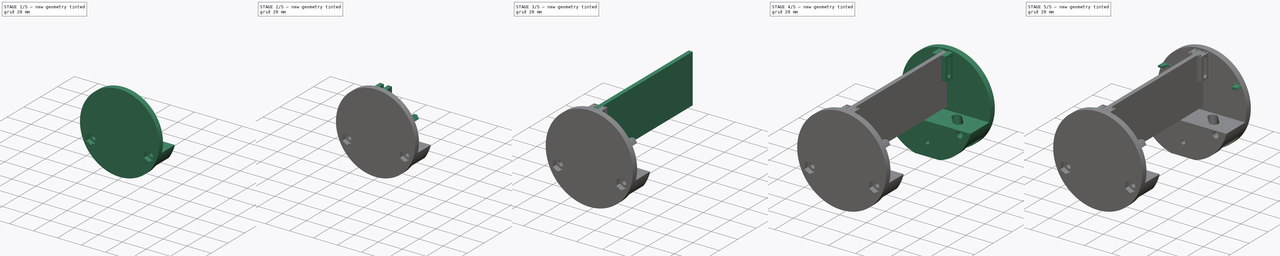
[diagram: build sequence overview — one tinted view per stage of 5, left to right]
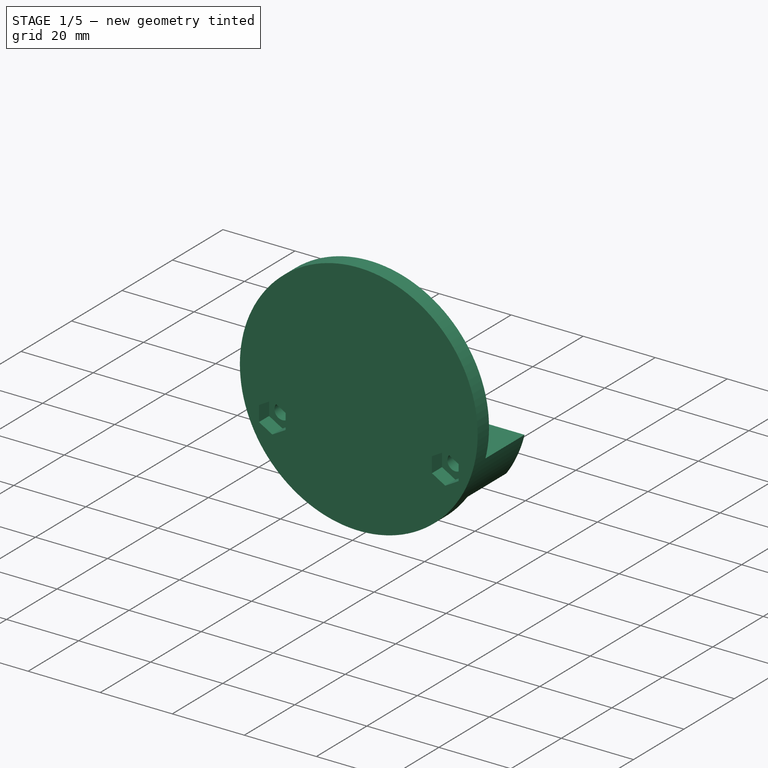
[diagram: stage 1 of 5 — iso view after this stage's code; geometry added in this stage tinted green]
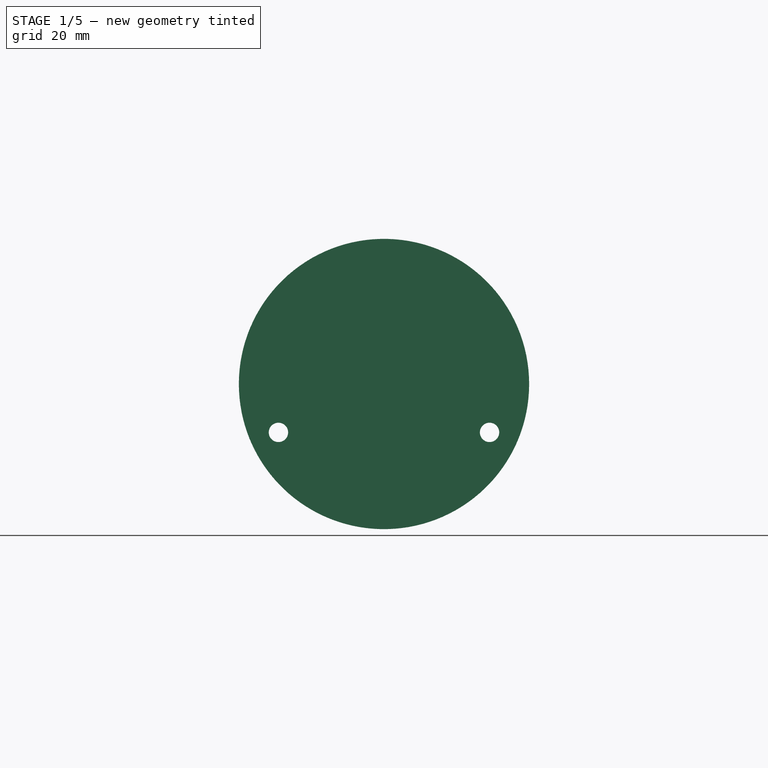
[diagram: stage 1 of 5 — front view after this stage's code; geometry added in this stage tinted green]
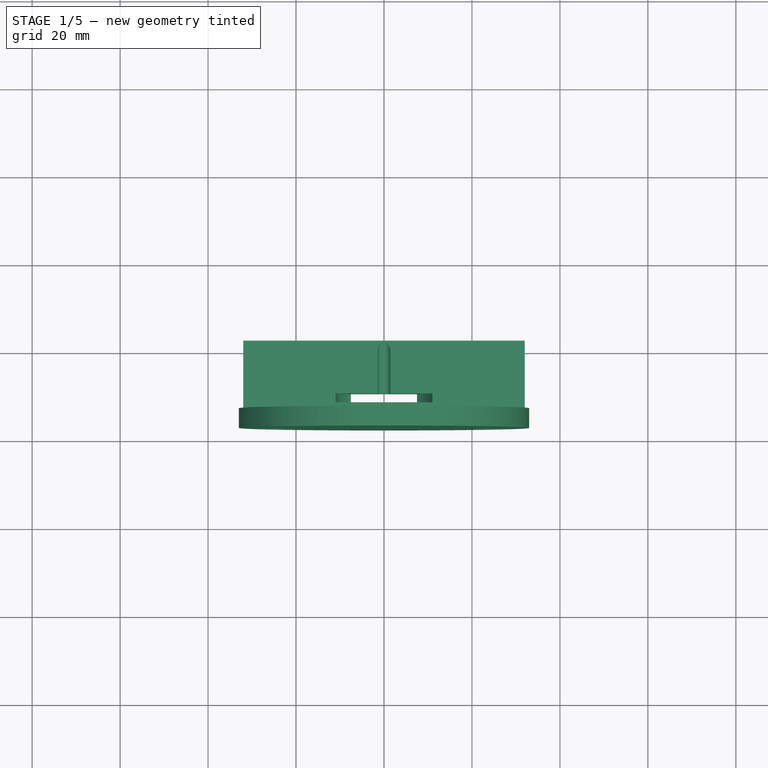
[diagram: stage 1 of 5 — top view after this stage's code; geometry added in this stage tinted green]
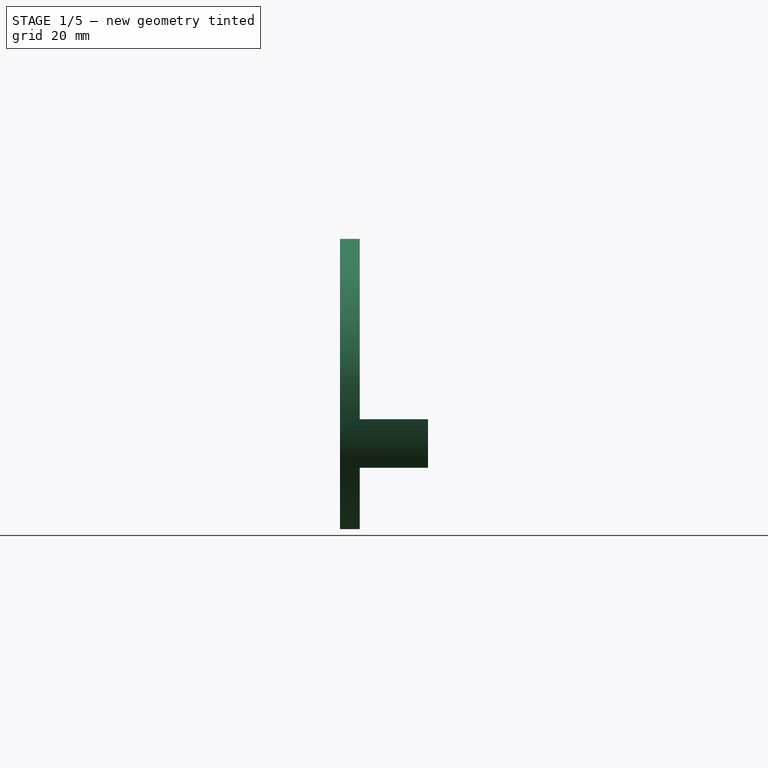
[diagram: stage 1 of 5 — right view after this stage's code; geometry added in this stage tinted green]
FCSTD DOCUMENT  (FreeCAD 0.19R24276 (Git))
Label: Corte_piezas_DEF_1
License: Creative Commons Attribution-ShareAlike
LicenseURL: http://creativecommons.org/licenses/by-sa/4.0/
objects: Sketcher::SketchObject×21, PartDesign::Pocket×11, PartDesign::Pad×10, PartDesign::Mirrored×7, PartDesign::Fillet×6, PartDesign::Body×4, PartDesign::ShapeBinder×4, PartDesign::MultiTransform×3, PartDesign::Chamfer×2, Spreadsheet::Sheet×1, TechDraw::DrawSVGTemplate×1, TechDraw::DrawViewPart×1, TechDraw::DrawPage×1, Part::Refine×1
note: 98 computed .brp shape members not serialized (recipe doc carries the construction recipe); baked Part::Feature solids carry a one-line shape summary decoded from their .brp

FEATURE [Spreadsheet::Sheet] Spreadsheet  label="Datos"
  cells = A1=Diámetro pila; B1(DiametroPila)=18; A2=Tolerancia; B2(tolerancia)=0.4; A3=Largo Pila; B3(largoPila)=65; A4=Separacion; B4(separacion)=1; A5=Grosor tapa; B5(grosortapa)=4.5; A6=Largo Bote; B6(LargoBote)=115; A7= Rosca pasante Diámetro; B7(roscaPasante4)=4; A8=Ancho placa electrónica; B8(anchoPlaca)=3; A9=Diámetro tornillos placa; B9(tornillosParaLaPlaca)=3
FEATURE [Sketcher::SketchObject] Sketch  label="habitaculo_pila_antena"
  FullyConstrained = true
  MapMode = 5
  Placement = pos=(0,0,0) rot=(1,0,0;1.5708rad)
  Support = -> [XZ_Plane]
  expr: Constraints[19] = 24
  expr: Constraints[7] = <<Datos>>.tolerancia + <<Datos>>.roscaPasante4
  expr: Constraints[2] = <<Datos>>.DiametroPila + <<Datos>>.tolerancia
  expr: Constraints[15] = <<Datos>>.DiametroPila
  sketch-geometry (13):
    g0: Circle CenterX=0 CenterY=0 CenterZ=0 NormalX=0 NormalY=0 NormalZ=1 AngleXU=0 Radius=33
    g1: LineSegment StartX=-9 StartY=-31.749 StartZ=0 EndX=9 EndY=-31.749 EndZ=0
    g2: LineSegment StartX=-32.0156 StartY=-8 StartZ=0 EndX=32.0156 EndY=-8 EndZ=0
    g3: ArcOfCircle CenterX=-9 CenterY=-20.249 CenterZ=0 NormalX=0 NormalY=0 NormalZ=1 AngleXU=0 Radius=9.2 StartAngle=0.208894 EndAngle=2.4418
    g4: ArcOfCircle CenterX=9 CenterY=-20.249 CenterZ=0 NormalX=0 NormalY=0 NormalZ=1 AngleXU=0 Radius=9.2 StartAngle=3.35049 EndAngle=9.21588
    g5: Circle CenterX=24 CenterY=-11 CenterZ=0 NormalX=0 NormalY=0 NormalZ=1 AngleXU=0 Radius=2.2
    g6: ArcOfCircle CenterX=0 CenterY=0 CenterZ=0 NormalX=0 NormalY=0 NormalZ=1 AngleXU=0 Radius=33 StartAngle=3.38646 EndAngle=4.43616
    g7: ArcOfCircle CenterX=0 CenterY=0 CenterZ=0 NormalX=0 NormalY=0 NormalZ=1 AngleXU=0 Radius=33 StartAngle=4.98862 EndAngle=6.03832
    g8: ArcOfCircle CenterX=-18.8935 CenterY=-15.243 CenterZ=0 NormalX=0 NormalY=0 NormalZ=1 AngleXU=0 Radius=3 StartAngle=0.311443 EndAngle=5.03488
    g9: ArcOfCircle CenterX=-9 CenterY=-20.249 CenterZ=0 NormalX=0 NormalY=0 NormalZ=1 AngleXU=0 Radius=9.2 StartAngle=2.90452 EndAngle=6.07429
    g10: Circle CenterX=-24 CenterY=-11 CenterZ=0 NormalX=0 NormalY=0 NormalZ=1 AngleXU=0 Radius=2.2
    g11: Circle CenterX=0 CenterY=-11 CenterZ=0 NormalX=0 NormalY=0 NormalZ=1 AngleXU=0 Radius=1.45
    g12: LineSegment StartX=24 StartY=-11 StartZ=0 EndX=0 EndY=-11 EndZ=0
  constraints (38):
    c: Diameter(g0) = 66
    c: Horizontal(g1)
    c: Diameter(g3) = 18.4
    c: Equal(g3,g4)
    c: Coincident(g4,g9)
    c: Coincident(g4,g3)
    c: Coincident(g0,g-1)
    c: Diameter(g5) = 4.4
    c: Horizontal(g2)
    c: Vertical(g1,g4)
    c: Coincident(g6,g-1)
    c: Coincident(g6,g1)
    c: Coincident(g7,g6)
    c: Coincident(g7,g1)
    c: Symmetric(g4,g3,g-2)
    c: DistanceX(g3,g4) = 18
    c: PointOnObject(g1,g0)
    c: DistanceY(g1,g3) = 11.5
    c: DistanceY(g5,g2) = 3
    c: DistanceX(g6,g5) = 24
    c: DistanceY(g2,g6) = 8
    c: PointOnObject(g6,g0)
    c: Coincident(g2,g6)
    c: Coincident(g7,g2)
    c: Equal(g3,g9)
    c: Coincident(g3,g8)
    c: Coincident(g9,g8)
    c: Coincident(g3,g9)
    c: Radius(g8) = 3
    c: DistanceX(g8,g2) = -13.1222
    c: DistanceY(g8,g2) = 7.24297
    c: Symmetric(g10,g5,g-2)
    c: Equal(g10,g5)
    c: Diameter(g11) = 2.9  'Antena'
    c: Coincident(g12,g5)
    c: Coincident(g12,g11)
    c: Horizontal(g12)
    c: PointOnObject(g11,g-2)
FEATURE [PartDesign::Pad] Pad  label="habitaculo_Pila"
  Direction = (1,1,1)
  Length = 66
  Length2 = 100
  Midplane = true
  Placement = pos=(0,0,0) rot=(1,0,0;1.5708rad)
  Profile = -> Sketch
  Type = 0
  expr: Length = <<Datos>>.largoPila + <<Datos>>.separacion
FEATURE [Sketcher::SketchObject] Sketch001  label="TapaHabitaculoSK"
  ExternalGeometry = -> [Pad]
  FullyConstrained = true
  MapMode = 5
  Placement = pos=(0,-33,-7.3e-15) rot=(1,0,0;1.5708rad)
  Support = -> [Pad]
  sketch-geometry (7):
    g0: ArcOfCircle CenterX=0 CenterY=-5.4e-15 CenterZ=0 NormalX=0 NormalY=0 NormalZ=1 AngleXU=0 Radius=33 StartAngle=3.38646 EndAngle=4.43616
    g1: ArcOfCircle CenterX=0 CenterY=-5.4e-15 CenterZ=0 NormalX=0 NormalY=0 NormalZ=1 AngleXU=0 Radius=33 StartAngle=4.98862 EndAngle=6.03832
    g2: LineSegment StartX=-32.0156 StartY=-8 StartZ=0 EndX=32.0156 EndY=-8 EndZ=0
    g3: LineSegment StartX=-9 StartY=-31.749 StartZ=0 EndX=9 EndY=-31.749 EndZ=0
    g4: Circle CenterX=-24 CenterY=-11 CenterZ=0 NormalX=0 NormalY=0 NormalZ=1 AngleXU=0 Radius=2.2
    g5: Circle CenterX=0 CenterY=-11 CenterZ=0 NormalX=0 NormalY=0 NormalZ=1 AngleXU=0 Radius=1.45
    g6: Circle CenterX=24 CenterY=-11 CenterZ=0 NormalX=0 NormalY=0 NormalZ=1 AngleXU=0 Radius=2.2
  constraints (15):
    c: Coincident(g0,g-3)
    c: Coincident(g0,g-3)
    c: Coincident(g1,g0)
    c: Coincident(g1,g-4)
    c: Coincident(g1,g-4)
    c: Coincident(g2,g0)
    c: Coincident(g2,g1)
    c: Coincident(g3,g0)
    c: Coincident(g3,g1)
    c: Coincident(g4,g-6)
    c: PointOnObject(g-5,g4)
    c: Coincident(g5,g-7)
    c: Coincident(g6,g-8)
    c: Equal(g6,g-8)
    c: Equal(g5,g-7)
FEATURE [PartDesign::Pad] Pad001  label="TapaHabitaculoPilas"
  BaseFeature = -> Pad
  Direction = (1,1,1)
  Length = 4.5
  Length2 = 100
  Placement = pos=(0,0,0) rot=(1,0,0;1.5708rad)
  Profile = -> Sketch001
  Type = 0
  expr: Length = <<Datos>>.grosortapa
FEATURE [PartDesign::Body] Body  label="Habitaculo_Pila"
  Group = -> [Sketch,Pad,Sketch001,Pad001]
  Origin = -> Origin
  Tip = -> Pad001
FEATURE [PartDesign::ShapeBinder] ShapeBinder  label="LateralA_SB"
  Placement = pos=(0,-4.5,-1e-15) rot=(0,0,1;0rad)
  Support = -> [Pad001]
  TraceSupport = false
FEATURE [Sketcher::SketchObject] Sketch002  label="LateralA_SK"
  ExternalGeometry = -> [ShapeBinder]
  FullyConstrained = true
  MapMode = 5
  Placement = pos=(0,-37.5,-1.19e-14) rot=(1,0,0;1.5708rad)
  Support = -> [ShapeBinder]
  sketch-geometry (9):
    g0: LineSegment StartX=-32.0156 StartY=-8 StartZ=0 EndX=32.0156 EndY=-8 EndZ=0
    g1: LineSegment StartX=-26.96 StartY=-19.0305 StartZ=0 EndX=26.96 EndY=-19.0305 EndZ=0
    g2: ArcOfCircle CenterX=0 CenterY=0 CenterZ=0 NormalX=0 NormalY=0 NormalZ=1 AngleXU=0 Radius=33 StartAngle=3.38646 EndAngle=3.75625
    g3: ArcOfCircle CenterX=0 CenterY=0 CenterZ=0 NormalX=0 NormalY=0 NormalZ=1 AngleXU=0 Radius=33 StartAngle=5.66852 EndAngle=6.03832
    g4: Circle CenterX=24 CenterY=-11 CenterZ=0 NormalX=0 NormalY=0 NormalZ=1 AngleXU=0 Radius=2.2
    g5: Circle CenterX=0 CenterY=-11 CenterZ=0 NormalX=0 NormalY=0 NormalZ=1 AngleXU=0 Radius=1.45
    g6: Circle CenterX=-24 CenterY=-11 CenterZ=0 NormalX=0 NormalY=0 NormalZ=1 AngleXU=0 Radius=2.2
    g7: LineSegment StartX=-32.0156 StartY=-8 StartZ=0 EndX=-24 EndY=-11 EndZ=0
    g8: LineSegment StartX=-24 StartY=-11 StartZ=0 EndX=-26.96 EndY=-19.0305 EndZ=0
  constraints (20):
    c: Coincident(g0,g-3)
    c: Coincident(g0,g-4)
    c: Horizontal(g1)
    c: Coincident(g2,g-1)
    c: Coincident(g2,g0)
    c: Coincident(g2,g1)
    c: Coincident(g3,g2)
    c: Coincident(g3,g0)
    c: Coincident(g3,g1)
    c: Coincident(g4,g-7)
    c: Coincident(g5,g-6)
    c: Coincident(g6,g-5)
    c: Equal(g4,g-7)
    c: Equal(g5,g-6)
    c: Equal(g6,g-5)
    c: Coincident(g7,g0)
    c: Coincident(g7,g6)
    c: Coincident(g8,g1)
    c: Equal(g7,g8)
    c: Coincident(g8,g6)
FEATURE [PartDesign::Pad] Pad002  label="lateralA"
  Direction = (1,1,1)
  Length = 15.5
  Length2 = 100
  Placement = pos=(0,-4.5,-1e-15) rot=(0,0,1;0rad)
  Profile = -> Sketch002
  Type = 0
  expr: Length = <<Datos>>.LargoBote / 2 - 2 * <<Datos>>.grosortapa - (<<Datos>>.largoPila + <<Datos>>.separacion) / 2
FEATURE [Sketcher::SketchObject] Sketch003  label="tapaLateralASK"
  ExternalGeometry = -> [Pad002]
  FullyConstrained = true
  MapMode = 5
  Placement = pos=(0,-53,-3.16e-14) rot=(1,0,0;1.5708rad)
  Support = -> [Pad002]
  sketch-geometry (3):
    g0: Circle CenterX=0 CenterY=0 CenterZ=0 NormalX=0 NormalY=0 NormalZ=1 AngleXU=0 Radius=33
    g1: Circle CenterX=24 CenterY=-11 CenterZ=0 NormalX=0 NormalY=0 NormalZ=1 AngleXU=0 Radius=2.2
    g2: Circle CenterX=-24 CenterY=-11 CenterZ=0 NormalX=0 NormalY=0 NormalZ=1 AngleXU=0 Radius=2.2
  constraints (7):
    c: Coincident(g0,g-1)
    c: PointOnObject(g-3,g0)
    c: Diameter(g-6) = 4.4
    c: Coincident(g1,g-6)
    c: Equal(g1,g-6)
    c: Coincident(g2,g-5)
    c: Equal(g2,g-5)
FEATURE [PartDesign::Pad] Pad003  label="TapaLateralA"
  BaseFeature = -> Pad002
  Direction = (1,1,1)
  Length = 4.5
  Length2 = 100
  Placement = pos=(0,-4.5,-1e-15) rot=(0,0,1;0rad)
  Profile = -> Sketch003
  Type = 0
  expr: Length = <<Datos>>.grosortapa
FEATURE [Sketcher::SketchObject] Sketch007  label="Ranura_AntenaSK"
  ExternalGeometry = -> [Pad003]
  FullyConstrained = true
  MapMode = 5
  Placement = pos=(-1.4e-15,-4.5,-8) rot=(0,0,1;0rad)
  Support = -> [Pad003]
  sketch-geometry (5):
    g0: ArcOfCircle CenterX=0 CenterY=-35 CenterZ=0 NormalX=0 NormalY=0 NormalZ=1 AngleXU=0 Radius=1.45 StartAngle=-1.199e-12 EndAngle=3.14159
    g1: LineSegment StartX=-1.45 StartY=-35 StartZ=0 EndX=-1.45 EndY=-45 EndZ=0
    g2: LineSegment StartX=1.45 StartY=-35 StartZ=0 EndX=1.45 EndY=-45 EndZ=0
    g3: LineSegment StartX=-1.45 StartY=-45 StartZ=0 EndX=1.45 EndY=-45 EndZ=0
    g4: LineSegment StartX=32.0156 StartY=-48.5 StartZ=0 EndX=0 EndY=-33 EndZ=0
  constraints (14):
    c: Tangent(g0,g2) = 1.5708
    c: Tangent(g0,g1) = -1.5708
    c: Vertical(g1)
    c: Coincident(g3,g1)
    c: Coincident(g3,g2)
    c: Horizontal(g3)
    c: Parallel(g2,g1)
    c: Diameter(g0) = 2.9
    c: DistanceY(g2,g2) = 10
    c: Coincident(g4,g-4)
    c: PointOnObject(g4,g-2)
    c: PointOnObject(g4,g-3)
    c: DistanceY(g0,g-3) = 2
    c: PointOnObject(g0,g-2)
FEATURE [PartDesign::Pocket] Pocket  label="ConRanuraAntena"
  BaseFeature = -> Pad003
  Length = 3
  Length2 = 100
  Placement = pos=(0,-4.5,-1e-15) rot=(0,0,1;0rad)
  Profile = -> Sketch007
  Type = 0
FEATURE [Sketcher::SketchObject] Sketch008  label="Con_tuercas_sketch"
  FullyConstrained = false
  MapMode = 5
  Placement = pos=(0,-57.5,-4.07e-14) rot=(1,0,0;1.5708rad)
  Support = -> [Pocket]
  expr: Constraints[19] = 7 + <<Datos>>.tolerancia
  sketch-geometry (16):
    g0: LineSegment StartX=27.7 StartY=-13.1362 StartZ=0 EndX=27.7 EndY=-8.8638 EndZ=0
    g1: LineSegment StartX=27.7 StartY=-8.8638 StartZ=0 EndX=24 EndY=-6.72761 EndZ=0
    g2: LineSegment StartX=24 StartY=-6.72761 StartZ=0 EndX=20.3 EndY=-8.8638 EndZ=0
    g3: LineSegment StartX=20.3 StartY=-8.8638 StartZ=0 EndX=20.3 EndY=-13.1362 EndZ=0
    g4: LineSegment StartX=20.3 StartY=-13.1362 StartZ=0 EndX=24 EndY=-15.2724 EndZ=0
    g5: LineSegment StartX=24 StartY=-15.2724 StartZ=0 EndX=27.7 EndY=-13.1362 EndZ=0
    g6: Circle CenterX=24 CenterY=-11 CenterZ=0 NormalX=0 NormalY=0 NormalZ=1 AngleXU=0 Radius=4.27239
    g7: LineSegment StartX=20.3 StartY=-8.8638 StartZ=0 EndX=27.7 EndY=-8.8638 EndZ=0
    g8: LineSegment StartX=-20.3 StartY=-13.1362 StartZ=0 EndX=-20.3 EndY=-8.8638 EndZ=0
    g9: LineSegment StartX=-20.3 StartY=-8.8638 StartZ=0 EndX=-24 EndY=-6.72761 EndZ=0
    g10: LineSegment StartX=-24 StartY=-6.72761 StartZ=0 EndX=-27.7 EndY=-8.8638 EndZ=0
    g11: LineSegment StartX=-27.7 StartY=-8.8638 StartZ=0 EndX=-27.7 EndY=-13.1362 EndZ=0
    g12: LineSegment StartX=-27.7 StartY=-13.1362 StartZ=0 EndX=-24 EndY=-15.2724 EndZ=0
    g13: LineSegment StartX=-24 StartY=-15.2724 StartZ=0 EndX=-20.3 EndY=-13.1362 EndZ=0
    g14: Circle CenterX=-24 CenterY=-11 CenterZ=0 NormalX=0 NormalY=0 NormalZ=1 AngleXU=0 Radius=4.27239
    g15: LineSegment StartX=-27.7 StartY=-8.8638 StartZ=0 EndX=-20.3 EndY=-8.8638 EndZ=0
  constraints (34):
    c: Coincident(g0,g1)
    c: Coincident(g1,g2)
    c: Coincident(g2,g3)
    c: Coincident(g3,g4)
    c: Coincident(g4,g5)
    c: Coincident(g5,g0)
    c: Equal(g0, g1-g5) x5
    c: PointOnObject(g0,g6)
    c: PointOnObject(g1,g6)
    c: PointOnObject(g2,g6)
    c: PointOnObject(g3,g6)
    c: PointOnObject(g4,g6)
    c: PointOnObject(g5,g6)
    c: Coincident(g7,g2)
    c: Coincident(g7,g0)
    c: Distance(g7) = 7.4
    c: Vertical(g0)
    c: Coincident(g8,g9)
    c: Coincident(g9,g10)
    c: Coincident(g10,g11)
    c: Coincident(g11,g12)
    c: Coincident(g12,g13)
    c: Coincident(g13,g8)
    c: Equal(g8, g9-g13) x5
    c: PointOnObject(g8,g14)
    c: PointOnObject(g9,g14)
    c: PointOnObject(g10,g14)
    c: PointOnObject(g11,g14)
    c: PointOnObject(g12,g14)
    c: PointOnObject(g13,g14)
    c: Coincident(g15,g10)
    c: Coincident(g15,g8)
    c: Distance(g15) = 7.4
    c: Vertical(g8)
FEATURE [PartDesign::Pocket] Pocket001  label="Con_tuercas"
  BaseFeature = -> Pocket
  Length = 4
  Length2 = 100
  Placement = pos=(0,-4.5,-1e-15) rot=(0,0,1;0rad)
  Profile = -> Sketch008
  Type = 0
FEATURE [Sketcher::SketchObject] Sketch010  label="ArandelaSK"
  ExternalGeometry = -> [Pocket001]
  FullyConstrained = true
  MapMode = 5
  Placement = pos=(0,-49.5,-1.09e-14) rot=(0,0.707107,0.707107;3.14159rad)
  Support = -> [Pocket001]
  sketch-geometry (6):
    g0: ArcOfCircle CenterX=0 CenterY=-11 CenterZ=0 NormalX=0 NormalY=0 NormalZ=1 AngleXU=0 Radius=11 StartAngle=3.14159 EndAngle=6.28319
    g1: LineSegment StartX=-11 StartY=0 StartZ=0 EndX=11 EndY=0 EndZ=0
    g2: LineSegment StartX=-11 StartY=0 StartZ=0 EndX=-11 EndY=-11 EndZ=0
    g3: LineSegment StartX=11 StartY=0 StartZ=0 EndX=11 EndY=-11 EndZ=0
    g4: Circle CenterX=0 CenterY=-11 CenterZ=0 NormalX=0 NormalY=0 NormalZ=1 AngleXU=0 Radius=11
    g5: Circle CenterX=0 CenterY=11 CenterZ=0 NormalX=0 NormalY=0 NormalZ=1 AngleXU=0 Radius=11
  constraints (15):
    c: Coincident(g0,g-3)
    c: PointOnObject(g-1,g0)
    c: Horizontal(g1)
    c: PointOnObject(g-1,g1)
    c: Coincident(g2,g1)
    c: Vertical(g3)
    c: Coincident(g1,g3)
    c: Vertical(g2)
    c: Tangent(g0,g2) = -1.5708
    c: Tangent(g0,g3) = 1.5708
    c: Coincident(g4,g0)
    c: PointOnObject(g0,g4)
    c: PointOnObject(g5,g-2)
    c: Equal(g4,g5)
    c: Tangent(g5,g4)
FEATURE [PartDesign::Pocket] Pocket003  label="Arandela_plano_GND"
  BaseFeature = -> Pocket001
  Length = 2
  Length2 = 100
  Placement = pos=(0,-4.5,-1e-15) rot=(0,0,1;0rad)
  Profile = -> Sketch010
  Type = 0
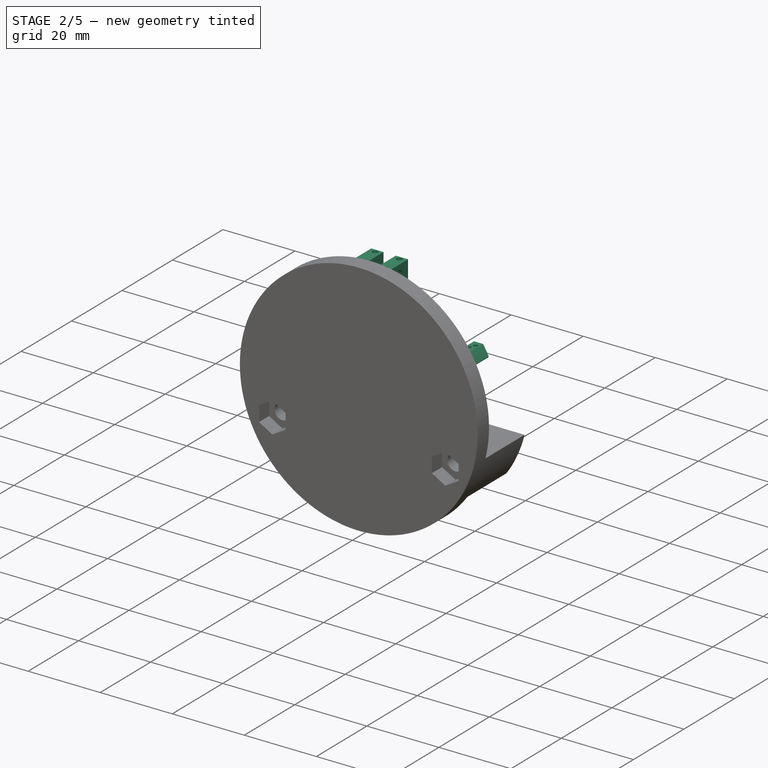
[diagram: stage 2 of 5 — iso view after this stage's code; geometry added in this stage tinted green]
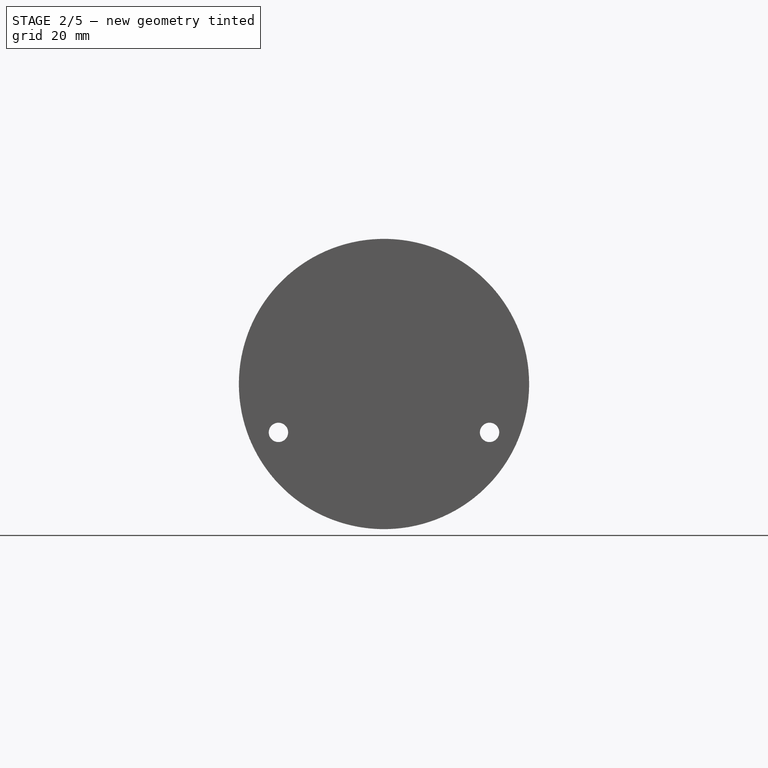
[diagram: stage 2 of 5 — front view after this stage's code; geometry added in this stage tinted green]
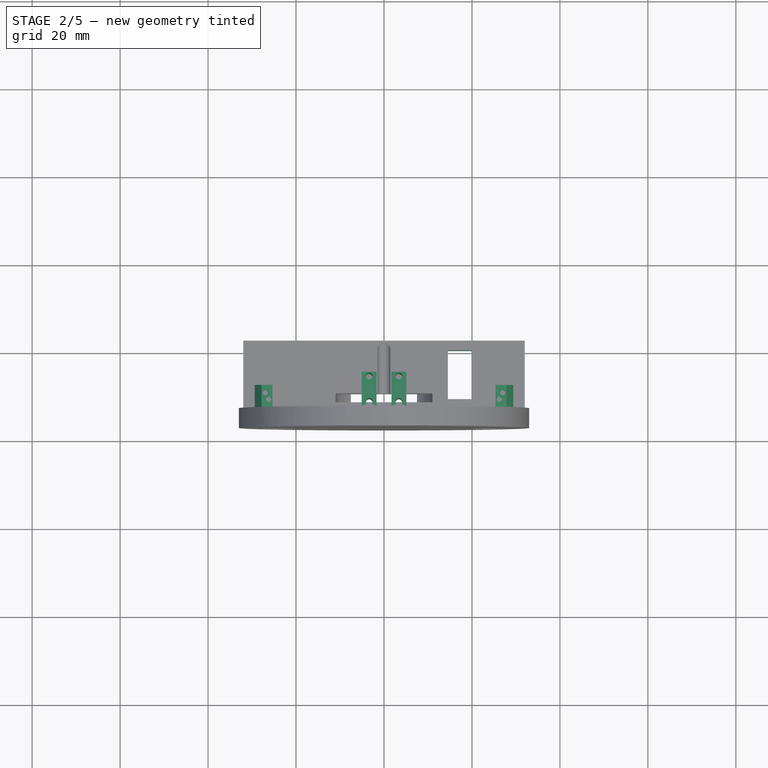
[diagram: stage 2 of 5 — top view after this stage's code; geometry added in this stage tinted green]
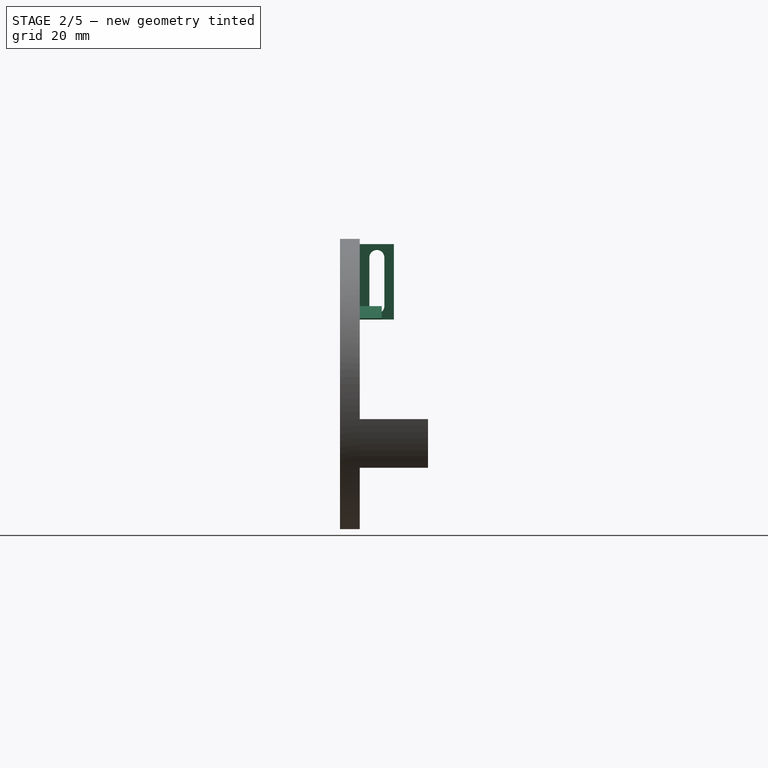
[diagram: stage 2 of 5 — right view after this stage's code; geometry added in this stage tinted green]
FEATURE [TechDraw::DrawSVGTemplate] Template
  EditableTexts = Designed_by_Name=Designed by Name; Drawing_number=Drawing number; FC-Date=Date; FC-SC=Scale; FC-SH=Sheet; FC-Title=Title; Subtitle=Subtitle; Weight=Weight
  Height = 210
  Orientation = 1
  Width = 297
FEATURE [Sketcher::SketchObject] Sketch011  label="Pasacables_RFM69"
  ExternalGeometry = -> [Pocket003]
  FullyConstrained = true
  MapMode = 5
  Placement = pos=(-1.4e-15,-4.5,-8) rot=(0,0,1;0rad)
  Support = -> [Pocket003]
  sketch-geometry (4):
    g0: LineSegment StartX=14.5156 StartY=-35.2 StartZ=0 EndX=20.0156 EndY=-35.2 EndZ=0
    g1: LineSegment StartX=20.0156 StartY=-35.2 StartZ=0 EndX=20.0156 EndY=-46.3 EndZ=0
    g2: LineSegment StartX=20.0156 StartY=-46.3 StartZ=0 EndX=14.5156 EndY=-46.3 EndZ=0
    g3: LineSegment StartX=14.5156 StartY=-46.3 StartZ=0 EndX=14.5156 EndY=-35.2 EndZ=0
  constraints (12):
    c: Coincident(g0,g1)
    c: Coincident(g1,g2)
    c: Coincident(g2,g3)
    c: Coincident(g3,g0)
    c: Horizontal(g0)
    c: Horizontal(g2)
    c: Vertical(g1)
    c: Vertical(g3)
    c: DistanceX(g0,g-4) = 12
    c: DistanceY(g0,g-4) = 2.2
    c: DistanceY(g-4,g1) = 2.2
    c: DistanceX(g0,g0) = 5.5
FEATURE [PartDesign::Pocket] Pocket004  label="LateralA_Pasacables"
  BaseFeature = -> Pocket003
  Length = 5
  Length2 = 100
  Placement = pos=(0,-4.5,-1e-15) rot=(0,0,1;0rad)
  Profile = -> Sketch011
  Type = 1
FEATURE [Sketcher::SketchObject] Sketch012  label="RanurasPlaca"
  ExternalGeometry = -> [Pocket004]
  FullyConstrained = true
  MapMode = 5
  Placement = pos=(0,-53,-3.74e-14) rot=(0,0.707107,0.707107;3.14159rad)
  Support = -> [Pocket004]
  expr: Constraints[19] = <<Datos>>.anchoPlaca + <<Datos>>.tolerancia
  expr: Constraints[28] = 2 * <<Datos>>.tolerancia
  expr: Constraints[42] = 2 * <<Datos>>.tolerancia
  sketch-geometry (16):
    g0: LineSegment StartX=-5.1 StartY=31.7936 StartZ=0 EndX=-1.7 EndY=31.7936 EndZ=0
    g1: LineSegment StartX=-1.7 StartY=31.7936 StartZ=0 EndX=-1.7 EndY=14.677 EndZ=0
    g2: LineSegment StartX=-1.7 StartY=14.677 StartZ=0 EndX=-5.1 EndY=14.677 EndZ=0
    g3: LineSegment StartX=-5.1 StartY=14.677 StartZ=0 EndX=-5.1 EndY=31.7936 EndZ=0
    g4: LineSegment StartX=1.7 StartY=31.7936 StartZ=0 EndX=5.1 EndY=31.7936 EndZ=0
    g5: LineSegment StartX=5.1 StartY=31.7936 StartZ=0 EndX=5.1 EndY=14.677 EndZ=0
    g6: LineSegment StartX=5.1 StartY=14.677 StartZ=0 EndX=1.7 EndY=14.677 EndZ=0
    g7: LineSegment StartX=1.7 StartY=14.677 StartZ=0 EndX=1.7 EndY=31.7936 EndZ=0
    g8: LineSegment StartX=-1.7 StartY=31.7936 StartZ=0 EndX=1.7 EndY=31.7936 EndZ=0
    g9: LineSegment StartX=5.1 StartY=-8 StartZ=0 EndX=5.1 EndY=14.677 EndZ=0
    g10: LineSegment StartX=0 StartY=0 StartZ=0 EndX=5.22671 EndY=32.5835 EndZ=0
    g11: GeomPoint X=0 Y=3.00003 Z=0
    g12: Circle CenterX=0 CenterY=-10.9733 CenterZ=0 NormalX=0 NormalY=0 NormalZ=1 AngleXU=0 Radius=11
    g13: Circle CenterX=0 CenterY=3.00003 CenterZ=0 NormalX=0 NormalY=0 NormalZ=1 AngleXU=0 Radius=11
    g14: Circle CenterX=0 CenterY=3.00003 CenterZ=0 NormalX=0 NormalY=0 NormalZ=1 AngleXU=0 Radius=11.8
    g15: LineSegment StartX=0 StartY=14.0001 StartZ=0 EndX=0 EndY=14.8001 EndZ=0
  constraints (44):
    c: Coincident(g0,g1)
    c: Coincident(g1,g2)
    c: Coincident(g2,g3)
    c: Coincident(g3,g0)
    c: Horizontal(g0)
    c: Horizontal(g2)
    c: Vertical(g1)
    c: Vertical(g3)
    c: Coincident(g4,g5)
    c: Coincident(g5,g6)
    c: Coincident(g6,g7)
    c: Coincident(g7,g4)
    c: Horizontal(g4)
    c: Horizontal(g6)
    c: Vertical(g5)
    c: Vertical(g7)
    c: Symmetric(g4,g0,g-2)
    c: Equal(g7,g1)
    c: Equal(g6,g2)
    c: DistanceX(g0,g4) = 3.4
    c: Coincident(g8,g0)
    c: Coincident(g8,g4)
    c: PointOnObject(g9,g-3)
    c: Coincident(g9,g5)
    c: Vertical(g9)
    c: Coincident(g10,g-1)
    c: PointOnObject(g10,g-4)
    c: PointOnObject(g4,g10)
    c: Distance(g4,g10) = 0.8
    c: Equal(g8,g4)
    c: PointOnObject(g11,g-2)
    c: PointOnObject(g-5,g12)
    c: PointOnObject(g12,g-2)
    c: PointOnObject(g-6,g12)
    c: Coincident(g13,g11)
    c: Tangent(g13,g-3)
    c: Equal(g13,g12)
    c: Coincident(g14,g11)
    c: PointOnObject(g15,g13)
    c: PointOnObject(g15,g14)
    c: PointOnObject(g15,g-2)
    c: PointOnObject(g15,g-2)
    c: DistanceY(g15,g15) = 0.8
    c: PointOnObject(g6,g14)
FEATURE [PartDesign::Pad] Pad007  label="Ranura_Placa"
  BaseFeature = -> Pocket004
  Direction = (1,1,1)
  Length = 7.75
  Length2 = 100
  Placement = pos=(0,-4.5,-1e-15) rot=(0,0,1;0rad)
  Profile = -> Sketch012
  Type = 0
  expr: Length = <<lateralA>>.Length / 2
FEATURE [Sketcher::SketchObject] Sketch013  label="SoporteTornilloPlaca"
  ExternalGeometry = -> [Pad007]
  FullyConstrained = true
  MapMode = 5
  Placement = pos=(5.1,-4.5,-1e-15) rot=(0.57735,0.57735,0.57735;2.0944rad)
  Support = -> [Pad007]
  expr: Constraints[10] = <<Datos>>.tornillosParaLaPlaca + <<Datos>>.tolerancia
  sketch-geometry (8):
    g0: ArcOfCircle CenterX=-44.625 CenterY=28.7693 CenterZ=0 NormalX=0 NormalY=0 NormalZ=1 AngleXU=0 Radius=1.7 StartAngle=8e-16 EndAngle=3.14159
    g1: ArcOfCircle CenterX=-44.625 CenterY=17.7012 CenterZ=0 NormalX=0 NormalY=0 NormalZ=1 AngleXU=0 Radius=1.7 StartAngle=3.14159 EndAngle=6.28319
    g2: LineSegment StartX=-46.325 StartY=28.7693 StartZ=0 EndX=-46.325 EndY=17.7012 EndZ=0
    g3: LineSegment StartX=-42.925 StartY=28.7693 StartZ=0 EndX=-42.925 EndY=17.7012 EndZ=0
    g4: LineSegment StartX=-44.625 StartY=31.7936 StartZ=0 EndX=-44.625 EndY=14.677 EndZ=0
    g5: LineSegment StartX=-44.625 StartY=23.2353 StartZ=0 EndX=-40.75 EndY=23.2353 EndZ=0
    g6: LineSegment StartX=-44.625 StartY=28.7693 StartZ=0 EndX=-40.75 EndY=23.2353 EndZ=0
    g7: LineSegment StartX=-40.75 StartY=23.2353 StartZ=0 EndX=-44.625 EndY=17.7012 EndZ=0
  constraints (20):
    c: Tangent(g0,g3) = 1.5708
    c: Tangent(g0,g2) = -1.5708
    c: Tangent(g2,g1) = -1.5708
    c: Tangent(g3,g1) = 1.5708
    c: Vertical(g2)
    c: Equal(g0,g1)
    c: PointOnObject(g4,g-5)
    c: Symmetric(g-3,g-4,g4)
    c: Vertical(g4)
    c: PointOnObject(g0,g4)
    c: Diameter(g0) = 3.4
    c: PointOnObject(g5,g4)
    c: Horizontal(g5)
    c: Symmetric(g-4,g-5,g5)
    c: Coincident(g6,g0)
    c: Coincident(g6,g5)
    c: Coincident(g7,g5)
    c: Coincident(g7,g1)
    c: Angle(g4,g6) = 0.610865
    c: Angle(g7,g4) = 0.610865
FEATURE [PartDesign::Pocket] Pocket005  label="Tornillos_placa"
  BaseFeature = -> Pad007
  Length = 5
  Length2 = 100
  Placement = pos=(0,-4.5,-1e-15) rot=(0,0,1;0rad)
  Profile = -> Sketch013
  Type = 1
FEATURE [Sketcher::SketchObject] Sketch017  label="Ranuras_A_paracaidas"
  ExternalGeometry = -> [Pocket005]
  FullyConstrained = true
  MapMode = 5
  Placement = pos=(0,-4.5,31.7936) rot=(0,0,1;0rad)
  Support = -> [Pocket005]
  sketch-geometry (12):
    g0: Circle CenterX=-3.36795 CenterY=-41.75 CenterZ=0 NormalX=0 NormalY=0 NormalZ=1 AngleXU=0 Radius=0.75
    g1: Circle CenterX=3.36795 CenterY=-41.75 CenterZ=0 NormalX=0 NormalY=0 NormalZ=1 AngleXU=0 Radius=0.75
    g2: Circle CenterX=-3.36795 CenterY=-47.5 CenterZ=0 NormalX=0 NormalY=0 NormalZ=1 AngleXU=0 Radius=0.75
    g3: Circle CenterX=3.36795 CenterY=-47.5 CenterZ=0 NormalX=0 NormalY=0 NormalZ=1 AngleXU=0 Radius=0.75
    g4: LineSegment StartX=-3.36795 StartY=-41.75 StartZ=0 EndX=3.36795 EndY=-41.75 EndZ=0
    g5: LineSegment StartX=3.36795 StartY=-41.75 StartZ=0 EndX=3.36795 EndY=-47.5 EndZ=0
    g6: LineSegment StartX=3.36795 StartY=-47.5 StartZ=0 EndX=-3.36795 EndY=-47.5 EndZ=0
    g7: LineSegment StartX=-3.36795 StartY=-47.5 StartZ=0 EndX=-3.36795 EndY=-41.75 EndZ=0
    g8: LineSegment StartX=3.36795 StartY=-41.75 StartZ=0 EndX=5.1 EndY=-40.75 EndZ=0
    g9: LineSegment StartX=-3.36795 StartY=-41.75 StartZ=0 EndX=-5.1 EndY=-40.75 EndZ=0
    g10: LineSegment StartX=-3.36795 StartY=-47.5 StartZ=0 EndX=-5.1 EndY=-48.5 EndZ=0
    g11: LineSegment StartX=3.36795 StartY=-47.5 StartZ=0 EndX=5.1 EndY=-48.5 EndZ=0
  constraints (27):
    c: Coincident(g4,g5)
    c: Coincident(g5,g6)
    c: Coincident(g6,g7)
    c: Coincident(g7,g4)
    c: Horizontal(g6)
    c: Vertical(g5)
    c: Symmetric(g4,g4,g-2)
    c: Coincident(g8,g4)
    c: Coincident(g8,g-6)
    c: Coincident(g9,g4)
    c: Coincident(g9,g-5)
    c: Coincident(g10,g6)
    c: Coincident(g10,g-5)
    c: Coincident(g11,g5)
    c: Coincident(g11,g-6)
    c: Equal(g8,g11)
    c: Equal(g11,g10)
    c: Coincident(g1,g4)
    c: Coincident(g0,g4)
    c: Coincident(g2,g6)
    c: Coincident(g3,g5)
    c: Equal(g0,g1)
    c: Equal(g1,g3)
    c: Equal(g3,g2)
    c: Diameter(g0) = 1.5
    c: Angle(g4,g9) = 2.61799
    c: Distance(g8) = 2
FEATURE [PartDesign::Pocket] Pocket008  label="Agujeros_paracaidas"
  BaseFeature = -> Pocket005
  Length = 0
  Length2 = 100
  Placement = pos=(0,-4.5,-1e-15) rot=(0,0,1;0rad)
  Profile = -> Sketch017
  Type = 3
  UpToFace = -> Pocket005 [Face32]
FEATURE [Sketcher::SketchObject] Sketch019  label="SK_Agujeros_paracaidas_2"
  ExternalGeometry = -> [Pocket008]
  FullyConstrained = true
  MapMode = 5
  Placement = pos=(0,-53,-3.74e-14) rot=(0,0.707107,0.707107;3.14159rad)
  Support = -> [Pocket008]
  expr: Constraints[6] = 2 * 1.5 + 3 * <<Datos>>.tolerancia
  sketch-geometry (6):
    g0: LineSegment StartX=5.1 StartY=14.677 StartZ=0 EndX=29.5565 EndY=14.677 EndZ=0
    g1: ArcOfCircle CenterX=0 CenterY=0 CenterZ=0 NormalX=0 NormalY=0 NormalZ=1 AngleXU=0 Radius=33 StartAngle=0.473254 EndAngle=0.565844
    g2: LineSegment StartX=25.3565 StartY=17.6922 StartZ=0 EndX=25.3565 EndY=14.677 EndZ=0
    g3: LineSegment StartX=25.3565 StartY=14.677 StartZ=0 EndX=29.1504 EndY=14.677 EndZ=0
    g4: ArcOfCircle CenterX=29.1504 CenterY=14.927 CenterZ=0 NormalX=0 NormalY=0 NormalZ=1 AngleXU=0 Radius=0.25 StartAngle=4.71239 EndAngle=6.75644
    g5: LineSegment StartX=25.3565 StartY=17.6922 StartZ=0 EndX=27.8565 EndY=17.6922 EndZ=0
  constraints (17):
    c: Coincident(g0,g-4)
    c: PointOnObject(g0,g-3)
    c: Horizontal(g0)
    c: Coincident(g1,g-1)
    c: Vertical(g2)
    c: PointOnObject(g3,g0)
    c: DistanceX(g2,g0) = 4.2
    c: Tangent(g1,g4) = -1.5708
    c: Tangent(g3,g4) = -1.5708
    c: PointOnObject(g3,g0)
    c: PointOnObject(g1,g-3)
    c: Horizontal(g5)
    c: Coincident(g2,g5)
    c: Coincident(g1,g5)
    c: Coincident(g2,g3)
    c: Diameter(g4) = 0.5
    c: DistanceX(g5,g5) = 2.5
FEATURE [PartDesign::Pad] Pad008  label="Pieza_agujeros_paracaidas_lateral"
  BaseFeature = -> Pocket008
  Direction = (1,1,1)
  Length = 5
  Length2 = 100
  Placement = pos=(0,-4.5,-1e-15) rot=(0,0,1;0rad)
  Profile = -> Sketch019
  Type = 0
FEATURE [Sketcher::SketchObject] Sketch020  label="agujeros_laterales_paracaidas_SK"
  ExternalGeometry = -> [Pad008]
  FullyConstrained = true
  MapMode = 5
  Placement = pos=(0,-4.5,17.6922) rot=(0,0,1;0rad)
  Support = -> [Pad008]
  sketch-geometry (6):
    g0: LineSegment StartX=-26.6065 StartY=-43.5 StartZ=0 EndX=-26.6065 EndY=-48.5 EndZ=0
    g1: LineSegment StartX=-27.8565 StartY=-43.5 StartZ=0 EndX=-25.3565 EndY=-48.5 EndZ=0
    g2: LineSegment StartX=-25.3565 StartY=-43.5 StartZ=0 EndX=-27.8565 EndY=-48.5 EndZ=0
    g3: GeomPoint X=-26.6065 Y=-46 Z=0
    g4: Circle CenterX=-26.9889 CenterY=-45.2353 CenterZ=0 NormalX=0 NormalY=0 NormalZ=1 AngleXU=0 Radius=0.6
    g5: Circle CenterX=-26.2241 CenterY=-46.7647 CenterZ=0 NormalX=0 NormalY=0 NormalZ=1 AngleXU=0 Radius=0.6
  constraints (15):
    c: PointOnObject(g0,g-3)
    c: PointOnObject(g0,g-6)
    c: Vertical(g0)
    c: Coincident(g1,g-5)
    c: Coincident(g1,g-4)
    c: Coincident(g2,g-4)
    c: Coincident(g2,g-6)
    c: PointOnObject(g3,g2)
    c: PointOnObject(g3,g1)
    c: PointOnObject(g3,g0)
    c: PointOnObject(g4,g1)
    c: Diameter(g4) = 1.2
    c: Equal(g4,g5)
    c: Symmetric(g5,g4,g3)
    c: Distance(g5,g4) = 1.71
FEATURE [PartDesign::Pocket] Pocket009  label="Lateral_paracaidas"
  BaseFeature = -> Pad008
  Length = 5
  Length2 = 100
  Placement = pos=(0,-4.5,-1e-15) rot=(0,0,1;0rad)
  Profile = -> Sketch020
  Type = 2
FEATURE [PartDesign::Mirrored] Mirrored  label="Pieza_lateral_A"
  BaseFeature = -> Pocket009
  MirrorPlane = -> Sketch019 [V_Axis]
  Originals = -> [Pad008]
  Placement = pos=(0,-4.5,-1e-15) rot=(0,0,1;0rad)
FEATURE [PartDesign::Mirrored] Mirrored001  label="Pieza_lateral_B"
  BaseFeature = -> Mirrored
  MirrorPlane = -> Sketch020 [V_Axis]
  Originals = -> [Pocket009]
  Placement = pos=(0,-4.5,-1e-15) rot=(0,0,1;0rad)
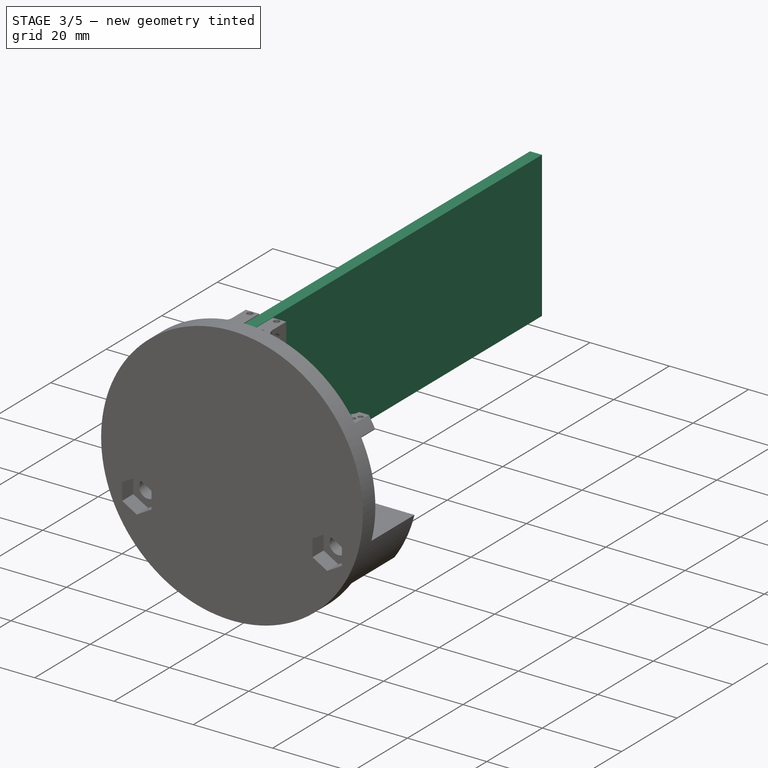
[diagram: stage 3 of 5 — iso view after this stage's code; geometry added in this stage tinted green]
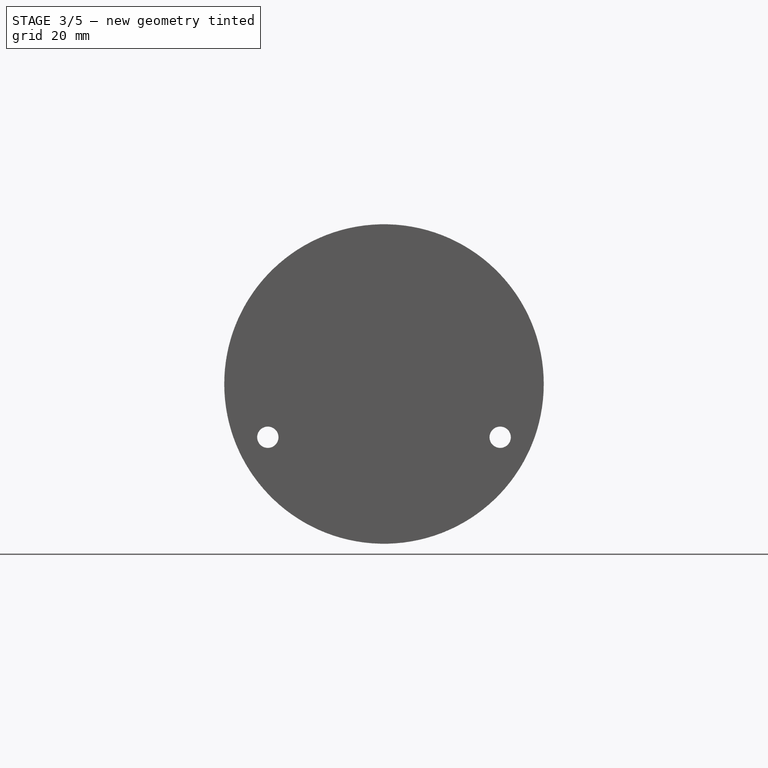
[diagram: stage 3 of 5 — front view after this stage's code; geometry added in this stage tinted green]
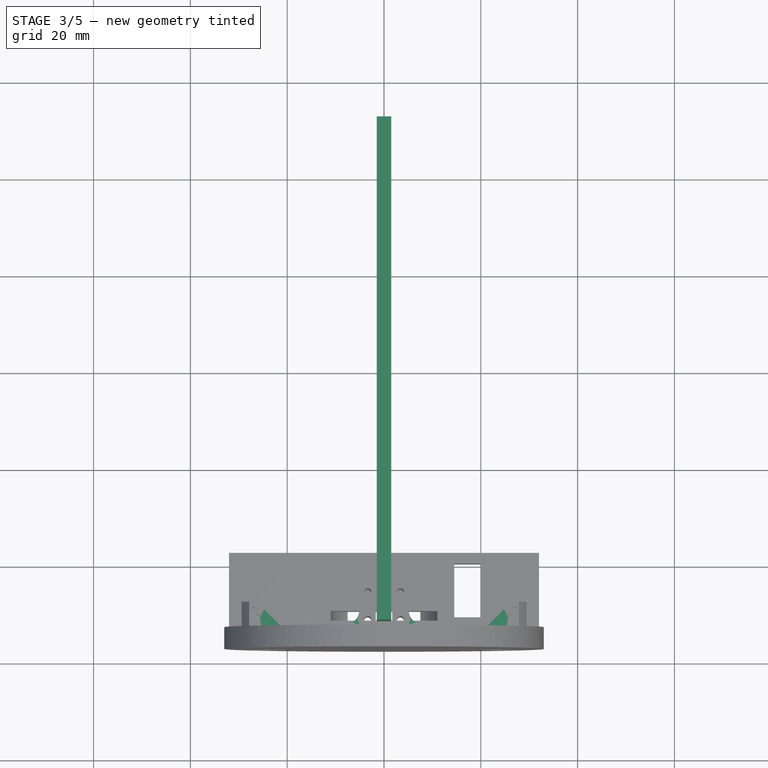
[diagram: stage 3 of 5 — top view after this stage's code; geometry added in this stage tinted green]
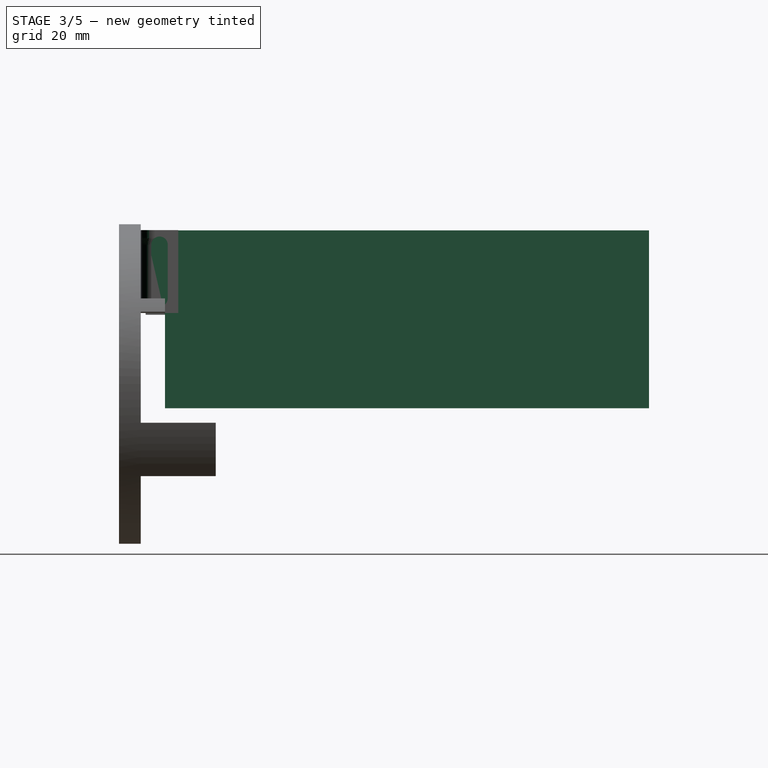
[diagram: stage 3 of 5 — right view after this stage's code; geometry added in this stage tinted green]
FEATURE [PartDesign::Body] Body002  label="LateralB"
  Group = -> [ShapeBinder001,Sketch004,Pad004,Sketch005,Pad005,Sketch006,Pad006,ShapeBinder002,Sketch009,Pocket002,Sketch015,Pocket007,Sketch021,Pocket010,Mirrored002,Mirrored003,Mirrored004,MultiTransform,MultiTransform001,MultiTransform002,Mirrored005,Mirrored006,Fillet003,Fillet004,Fillet005]
  Origin = -> Origin002
  Tip = -> Fillet005
FEATURE [PartDesign::ShapeBinder] ShapeBinder003
  Placement = pos=(0,-4.5,-1e-15) rot=(0,0,1;0rad)
  TraceSupport = false
FEATURE [Sketcher::SketchObject] Sketch022  label="Sketch_placa"
  ExternalGeometry = -> [ShapeBinder003]
  FullyConstrained = false
  Placement = pos=(0,0,-3.7e-14) rot=(0,0.707107,0.707107;3.14159rad)
  Support = -> [ShapeBinder003]
  expr: Constraints[8] = <<Datos>>.anchoPlaca
  sketch-geometry (5):
    g0: LineSegment StartX=-1.5 StartY=31.7351 StartZ=0 EndX=1.5 EndY=31.7351 EndZ=0
    g1: LineSegment StartX=1.5 StartY=31.7351 StartZ=0 EndX=1.5 EndY=-5 EndZ=0
    g2: LineSegment StartX=1.5 StartY=-5 StartZ=0 EndX=-1.5 EndY=-5 EndZ=0
    g3: LineSegment StartX=-1.5 StartY=-5 StartZ=0 EndX=-1.5 EndY=31.7351 EndZ=0
    g4: LineSegment StartX=1.5 StartY=-5 StartZ=0 EndX=1.5 EndY=-8 EndZ=0
  constraints (13):
    c: Coincident(g0,g1)
    c: Coincident(g1,g2)
    c: Coincident(g2,g3)
    c: Coincident(g3,g0)
    c: Horizontal(g2)
    c: Vertical(g1)
    c: Vertical(g3)
    c: Symmetric(g0,g0,g-2)
    c: DistanceX(g0,g0) = 3
    c: Coincident(g4,g1)
    c: PointOnObject(g4,g-3)
    c: Vertical(g4)
    c: DistanceY(g4,g4) = 3
FEATURE [PartDesign::Pad] Pad009  label="Placa_electrónica"
  Direction = (1,1,1)
  Length = 104
  Length2 = 100
  Midplane = true
  Placement = pos=(0,-4.5,-1e-15) rot=(0,0,1;0rad)
  Profile = -> Sketch022
  Type = 0
FEATURE [Sketcher::SketchObject] Sketch023
  ExternalGeometry = -> [Pad009]
  FullyConstrained = true
  MapMode = 5
  Placement = pos=(0,-52,5.17e-14) rot=(1,0,0;1.5708rad)
  Support = -> [Pad009]
  sketch-geometry (4):
    g0: LineSegment StartX=-1.5 StartY=-5 StartZ=0 EndX=1.5 EndY=-5 EndZ=0
    g1: LineSegment StartX=1.5 StartY=-5 StartZ=0 EndX=1.5 EndY=14.3 EndZ=0
    g2: LineSegment StartX=1.5 StartY=14.3 StartZ=0 EndX=-1.5 EndY=14.3 EndZ=0
    g3: LineSegment StartX=-1.5 StartY=14.3 StartZ=0 EndX=-1.5 EndY=-5 EndZ=0
  constraints (11):
    c: Coincident(g0,g1)
    c: Coincident(g1,g2)
    c: Coincident(g2,g3)
    c: Coincident(g3,g0)
    c: Horizontal(g0)
    c: Horizontal(g2)
    c: Vertical(g1)
    c: Vertical(g3)
    c: Coincident(g0,g-3)
    c: PointOnObject(g1,g-4)
    c: DistanceY(g1,g1) = 19.3
FEATURE [PartDesign::Pocket] Pocket011
  BaseFeature = -> Pad009
  Length = 4
  Length2 = 100
  Placement = pos=(0,-4.5,-1e-15) rot=(0,0,1;0rad)
  Profile = -> Sketch023
  Type = 0
FEATURE [PartDesign::Body] Body003  label="Placa_electronica"
  Group = -> [ShapeBinder003,Sketch022,Pad009,Sketch023,Pocket011]
  Origin = -> Origin003
  Tip = -> Pocket011
FEATURE [PartDesign::Fillet] Fillet
  Base = -> Mirrored001 [Edge58,Edge55]
  BaseFeature = -> Mirrored001
  Placement = pos=(0,-4.5,-1e-15) rot=(0,0,1;0rad)
  Radius = 3
  SupportTransform = false
FEATURE [PartDesign::Chamfer] Chamfer
  Angle = 45
  Base = -> Fillet [Edge14]
  BaseFeature = -> Fillet
  ChamferType = 0
  FlipDirection = false
  Placement = pos=(0,-4.5,-1e-15) rot=(0,0,1;0rad)
  Size = 4
  Size2 = 1
  SupportTransform = false
FEATURE [PartDesign::Chamfer] Chamfer001
  Angle = 45
  Base = -> Chamfer [Edge8]
  BaseFeature = -> Chamfer
  ChamferType = 0
  FlipDirection = false
  Placement = pos=(0,-4.5,-1e-15) rot=(0,0,1;0rad)
  Size = 4
  Size2 = 1
  SupportTransform = false
FEATURE [PartDesign::Fillet] Fillet006
  Base = -> Chamfer001 [Edge66]
  BaseFeature = -> Chamfer001
  Placement = pos=(0,-4.5,-1e-15) rot=(0,0,1;0rad)
  Radius = 2
  SupportTransform = false
FEATURE [PartDesign::Fillet] Fillet007
  Base = -> Fillet006 [Edge73]
  BaseFeature = -> Fillet006
  Placement = pos=(0,-4.5,-1e-15) rot=(0,0,1;0rad)
  Radius = 2
  SupportTransform = false
FEATURE [PartDesign::Body] Body001  label="LateralA"
  Group = -> [ShapeBinder,Sketch002,Pad002,Sketch003,Pad003,Sketch007,Pocket,Sketch008,Pocket001,Sketch010,Pocket003,Sketch011,Pocket004,Sketch012,Pad007,Sketch013,Pocket005,Sketch017,Pocket008,Sketch019,Pad008,Sketch020,Pocket009,Mirrored,Mirrored001,Fillet,Chamfer,Chamfer001,Fillet006,Fillet007]
  Origin = -> Origin001
  Tip = -> Fillet007
FEATURE [TechDraw::DrawViewPart] View
  CoarseView = false
  Direction = (1,0,0)
  Focus = 100
  HardHidden = false
  IsoCount = 0
  IsoHidden = false
  IsoVisible = false
  LockPosition = true
  Perspective = false
  Rotation = 0
  Scale = 1.8
  ScaleType = 0
  SeamHidden = false
  SeamVisible = false
  SmoothHidden = false
  SmoothVisible = false
  Source = -> [Body,Body001,Body002]
  X = 150.151
  XDirection = (0,1,0)
  Y = 126.132
FEATURE [TechDraw::DrawPage] Page
  KeepUpdated = true
  NextBalloonIndex = 1
  ProjectionType = 0
  Template = -> Template
  Views = -> [View]
FEATURE [Part::Refine] Body001001  label="LateralA001"
  Source = -> Body001
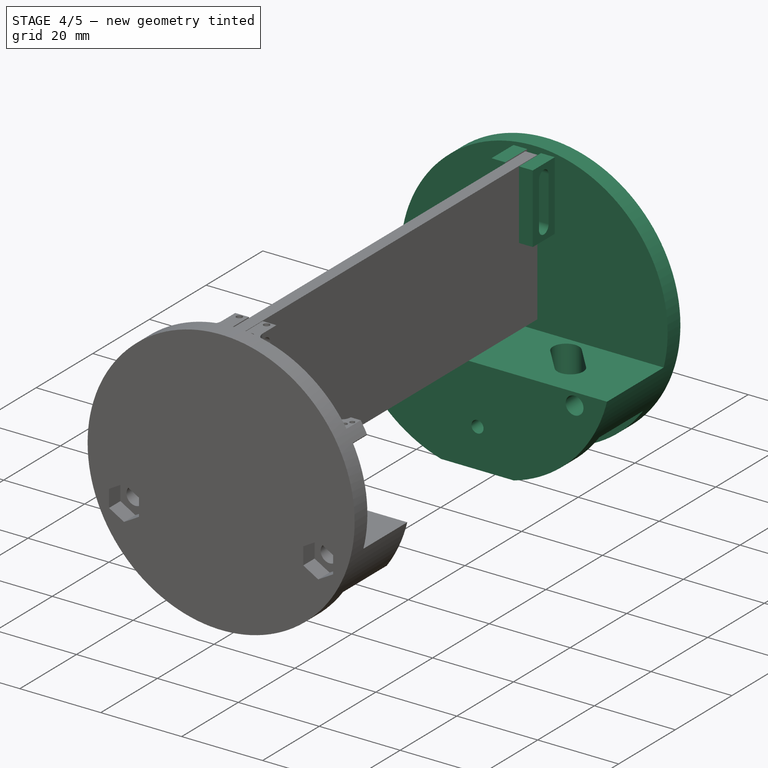
[diagram: stage 4 of 5 — iso view after this stage's code; geometry added in this stage tinted green]
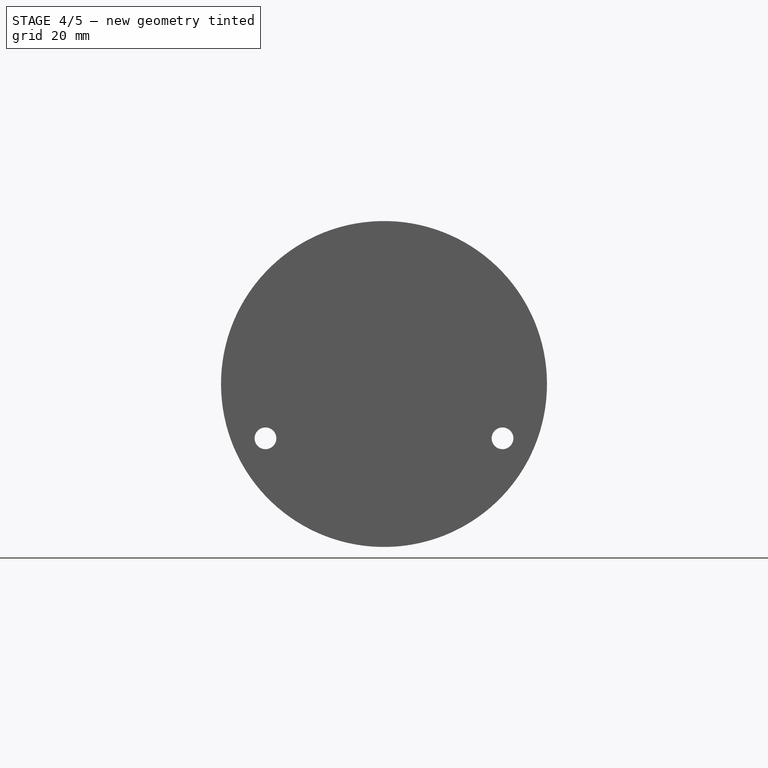
[diagram: stage 4 of 5 — front view after this stage's code; geometry added in this stage tinted green]
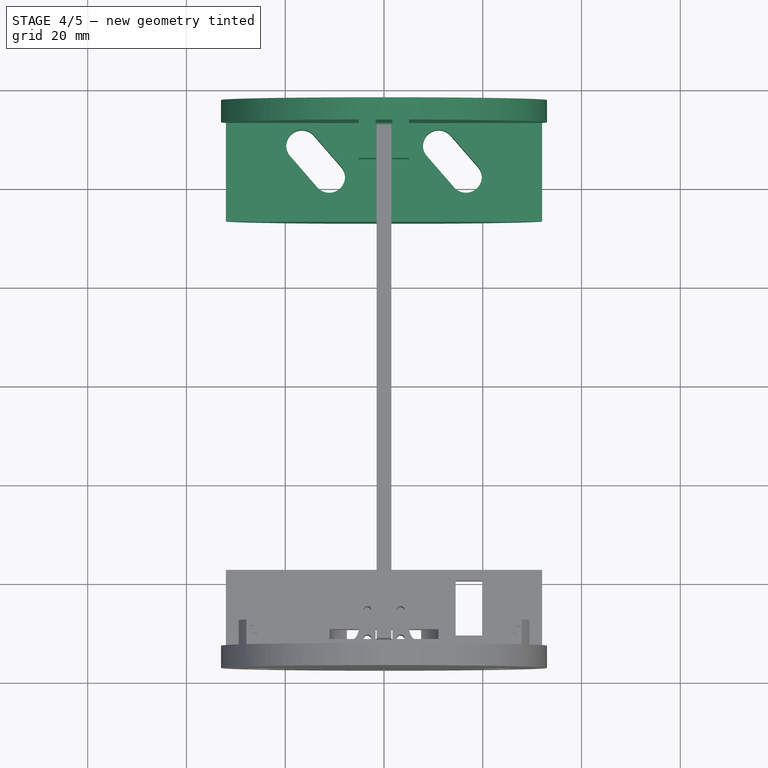
[diagram: stage 4 of 5 — top view after this stage's code; geometry added in this stage tinted green]
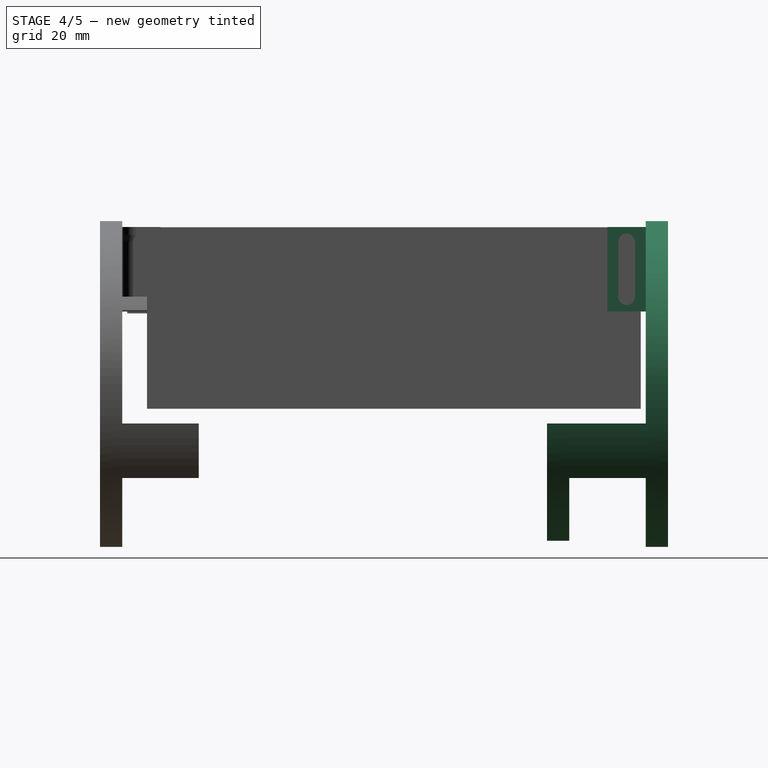
[diagram: stage 4 of 5 — right view after this stage's code; geometry added in this stage tinted green]
FEATURE [PartDesign::ShapeBinder] ShapeBinder001  label="LateralB_SB"
  Placement = pos=(0,33,7e-15) rot=(0,0,1;0rad)
  Support = -> [Pad001]
  TraceSupport = false
FEATURE [Sketcher::SketchObject] Sketch004  label="LateralBSK"
  ExternalGeometry = -> [ShapeBinder001]
  FullyConstrained = true
  MapMode = 5
  Placement = pos=(0,33,7e-15) rot=(0,0.707107,0.707107;3.14159rad)
  Support = -> [ShapeBinder001]
  sketch-geometry (6):
    g0: ArcOfCircle CenterX=3.5e-15 CenterY=-2.7e-15 CenterZ=0 NormalX=0 NormalY=0 NormalZ=1 AngleXU=0 Radius=33 StartAngle=3.38646 EndAngle=4.43616
    g1: ArcOfCircle CenterX=3.5e-15 CenterY=-2.7e-15 CenterZ=0 NormalX=0 NormalY=0 NormalZ=1 AngleXU=0 Radius=33 StartAngle=4.98862 EndAngle=6.03832
    g2: LineSegment StartX=-32.0156 StartY=-8 StartZ=0 EndX=32.0156 EndY=-8 EndZ=0
    g3: LineSegment StartX=9 StartY=-31.749 StartZ=0 EndX=-9 EndY=-31.749 EndZ=0
    g4: Circle CenterX=24 CenterY=-11 CenterZ=0 NormalX=0 NormalY=0 NormalZ=1 AngleXU=0 Radius=2.2
    g5: Circle CenterX=-24 CenterY=-11 CenterZ=0 NormalX=0 NormalY=0 NormalZ=1 AngleXU=0 Radius=2.2
  constraints (13):
    c: Coincident(g0,g-3)
    c: Coincident(g1,g0)
    c: Coincident(g1,g-4)
    c: Coincident(g1,g-4)
    c: Coincident(g-3,g0)
    c: Coincident(g2,g0)
    c: Coincident(g2,g1)
    c: Coincident(g3,g1)
    c: Coincident(g3,g0)
    c: Coincident(g4,g-6)
    c: Equal(g4,g-6)
    c: Coincident(g5,g-5)
    c: Equal(g5,g-5)
FEATURE [PartDesign::Pad] Pad004  label="TaparPilaLateralB"
  Direction = (1,1,1)
  Length = 4.5
  Length2 = 100
  Placement = pos=(0,33,7e-15) rot=(0,0,1;0rad)
  Profile = -> Sketch004
  Type = 0
  expr: Length = <<Datos>>.grosortapa
FEATURE [Sketcher::SketchObject] Sketch005  label="LateralBProlongacionSK"
  ExternalGeometry = -> [Pad004]
  FullyConstrained = true
  MapMode = 5
  Placement = pos=(0,37.5,8.5e-15) rot=(0,0.707107,0.707107;3.14159rad)
  Support = -> [Pad004]
  sketch-geometry (8):
    g0: ArcOfCircle CenterX=0 CenterY=0 CenterZ=0 NormalX=0 NormalY=0 NormalZ=1 AngleXU=0 Radius=33 StartAngle=3.38646 EndAngle=3.75625
    g1: ArcOfCircle CenterX=0 CenterY=0 CenterZ=0 NormalX=0 NormalY=0 NormalZ=1 AngleXU=0 Radius=33 StartAngle=5.66852 EndAngle=6.03832
    g2: LineSegment StartX=-26.96 StartY=-19.0305 StartZ=0 EndX=26.96 EndY=-19.0305 EndZ=0
    g3: LineSegment StartX=32.0156 StartY=-8 StartZ=0 EndX=-32.0156 EndY=-8 EndZ=0
    g4: Circle CenterX=-24 CenterY=-11 CenterZ=0 NormalX=0 NormalY=0 NormalZ=1 AngleXU=0 Radius=2.2
    g5: Circle CenterX=24 CenterY=-11 CenterZ=0 NormalX=0 NormalY=0 NormalZ=1 AngleXU=0 Radius=2.2
    g6: LineSegment StartX=-32.0156 StartY=-8 StartZ=0 EndX=-24 EndY=-11 EndZ=0
    g7: LineSegment StartX=-26.96 StartY=-19.0305 StartZ=0 EndX=-24 EndY=-11 EndZ=0
  constraints (18):
    c: Coincident(g0,g-1)
    c: Coincident(g0,g-3)
    c: Coincident(g1,g0)
    c: Coincident(g1,g-4)
    c: Coincident(g2,g0)
    c: Coincident(g2,g1)
    c: Horizontal(g2)
    c: Coincident(g3,g1)
    c: Coincident(g3,g0)
    c: Coincident(g4,g-5)
    c: Coincident(g5,g-6)
    c: Equal(g5,g-6)
    c: Equal(g4,g-5)
    c: Coincident(g6,g0)
    c: Coincident(g6,g4)
    c: Coincident(g7,g0)
    c: Coincident(g7,g4)
    c: Equal(g6,g7)
FEATURE [PartDesign::Pad] Pad005  label="LateralBProlongacion"
  BaseFeature = -> Pad004
  Direction = (1,1,1)
  Length = 15.5
  Length2 = 100
  Placement = pos=(0,33,7e-15) rot=(0,0,1;0rad)
  Profile = -> Sketch005
  Type = 0
  expr: Length = <<lateralA>>.Length
FEATURE [Sketcher::SketchObject] Sketch006  label="TapaLateralB_SK"
  ExternalGeometry = -> [Pad005]
  FullyConstrained = true
  MapMode = 5
  Placement = pos=(0,53,1.96e-14) rot=(0,0.707107,0.707107;3.14159rad)
  Support = -> [Pad005]
  sketch-geometry (3):
    g0: Circle CenterX=0 CenterY=0 CenterZ=0 NormalX=0 NormalY=0 NormalZ=1 AngleXU=0 Radius=33
    g1: Circle CenterX=-24 CenterY=-11 CenterZ=0 NormalX=0 NormalY=0 NormalZ=1 AngleXU=0 Radius=2.2
    g2: Circle CenterX=24 CenterY=-11 CenterZ=0 NormalX=0 NormalY=0 NormalZ=1 AngleXU=0 Radius=2.2
  constraints (6):
    c: Coincident(g0,g-1)
    c: PointOnObject(g-3,g0)
    c: Coincident(g1,g-4)
    c: Coincident(g2,g-6)
    c: Equal(g2,g-6)
    c: Equal(g-4,g1)
FEATURE [PartDesign::Pad] Pad006  label="TapaLateralB"
  BaseFeature = -> Pad005
  Direction = (1,1,1)
  Length = 4.5
  Length2 = 100
  Placement = pos=(0,33,7e-15) rot=(0,0,1;0rad)
  Profile = -> Sketch006
  Type = 0
  expr: Length = <<Datos>>.grosortapa
FEATURE [PartDesign::ShapeBinder] ShapeBinder002  label="SB_Tuercas"
  Placement = pos=(0,-4.5,-1e-15) rot=(0,0,1;0rad)
  Support = -> [Pocket001]
  TraceSupport = false
FEATURE [Sketcher::SketchObject] Sketch009  label="Con_Tuercas"
  ExternalGeometry = -> [ShapeBinder002,Pad006]
  FullyConstrained = true
  MapMode = 5
  Placement = pos=(0,57.5,2.54e-14) rot=(0,0.707107,0.707107;3.14159rad)
  Support = -> [Pad006]
  sketch-geometry (14):
    g0: LineSegment StartX=24 StartY=-6.72761 StartZ=0 EndX=20.3 EndY=-8.8638 EndZ=0
    g1: LineSegment StartX=20.3 StartY=-8.8638 StartZ=0 EndX=20.3 EndY=-13.1362 EndZ=0
    g2: LineSegment StartX=20.3 StartY=-13.1362 StartZ=0 EndX=24 EndY=-15.2724 EndZ=0
    g3: LineSegment StartX=24 StartY=-15.2724 StartZ=0 EndX=27.7 EndY=-13.1362 EndZ=0
    g4: LineSegment StartX=27.7 StartY=-13.1362 StartZ=0 EndX=27.7 EndY=-8.8638 EndZ=0
    g5: LineSegment StartX=27.7 StartY=-8.8638 StartZ=0 EndX=24 EndY=-6.72761 EndZ=0
    g6: Circle CenterX=24 CenterY=-11 CenterZ=0 NormalX=0 NormalY=0 NormalZ=1 AngleXU=0 Radius=4.27239
    g7: LineSegment StartX=-24 StartY=-6.72761 StartZ=0 EndX=-27.7 EndY=-8.8638 EndZ=0
    g8: LineSegment StartX=-27.7 StartY=-8.8638 StartZ=0 EndX=-27.7 EndY=-13.1362 EndZ=0
    g9: LineSegment StartX=-27.7 StartY=-13.1362 StartZ=0 EndX=-24 EndY=-15.2724 EndZ=0
    g10: LineSegment StartX=-24 StartY=-15.2724 StartZ=0 EndX=-20.3 EndY=-13.1362 EndZ=0
    g11: LineSegment StartX=-20.3 StartY=-13.1362 StartZ=0 EndX=-20.3 EndY=-8.8638 EndZ=0
    g12: LineSegment StartX=-20.3 StartY=-8.8638 StartZ=0 EndX=-24 EndY=-6.72761 EndZ=0
    g13: Circle CenterX=-24 CenterY=-11 CenterZ=0 NormalX=0 NormalY=0 NormalZ=1 AngleXU=0 Radius=4.27239
  constraints (30):
    c: Coincident(g0,g1)
    c: Coincident(g1,g2)
    c: Coincident(g2,g3)
    c: Coincident(g3,g4)
    c: Coincident(g4,g5)
    c: Coincident(g5,g0)
    c: Equal(g0, g1-g5) x5
    c: PointOnObject(g0,g6)
    c: PointOnObject(g1,g6)
    c: PointOnObject(g2,g6)
    c: PointOnObject(g3,g6)
    c: PointOnObject(g4,g6)
    c: PointOnObject(g5,g6)
    c: Coincident(g6,g-4)
    c: Coincident(g5,g-3)
    c: Coincident(g7,g8)
    c: Coincident(g8,g9)
    c: Coincident(g9,g10)
    c: Coincident(g10,g11)
    c: Coincident(g11,g12)
    c: Coincident(g12,g7)
    c: Equal(g7, g8-g12) x5
    c: PointOnObject(g7,g13)
    c: PointOnObject(g8,g13)
    c: PointOnObject(g9,g13)
    c: PointOnObject(g10,g13)
    c: PointOnObject(g11,g13)
    c: PointOnObject(g12,g13)
    c: Coincident(g13,g-5)
    c: Coincident(g12,g-6)
FEATURE [PartDesign::Pocket] Pocket002  label="Tapa_lateral_B_con_tuercas"
  BaseFeature = -> Pad006
  Length = 4
  Length2 = 100
  Placement = pos=(0,33,7e-15) rot=(0,0,1;0rad)
  Profile = -> Sketch009
  Type = 0
FEATURE [Sketcher::SketchObject] Sketch015  label="Agujero_cables_positivo_negativo"
  ExternalGeometry = -> [ShapeBinder001]
  FullyConstrained = true
  MapMode = 5
  Placement = pos=(0,33,7e-15) rot=(1,0,0;1.5708rad)
  Support = -> [Pocket002]
  sketch-geometry (1):
    g0: Circle CenterX=0 CenterY=-22.1569 CenterZ=0 NormalX=0 NormalY=0 NormalZ=1 AngleXU=0 Radius=1.5
  constraints (2):
    c: Coincident(g0,g-3)
    c: Radius(g0) = 1.5
FEATURE [PartDesign::Pocket] Pocket007  label="Agujero_sacar_cables"
  BaseFeature = -> Pocket002
  Length = 5
  Length2 = 100
  Placement = pos=(0,33,7e-15) rot=(0,0,1;0rad)
  Profile = -> Sketch015
  Type = 2
FEATURE [Sketcher::SketchObject] Sketch021  label="Agujeros_sacar_camara_SK"
  ExternalGeometry = -> [Pocket007]
  FullyConstrained = true
  MapMode = 5
  Placement = pos=(-1.1e-15,33,-8) rot=(0,0,1;0rad)
  Support = -> [Pocket007]
  expr: Constraints[30] = 8 + <<Datos>>.tolerancia
  expr: Constraints[29] = (6 + <<Datos>>.tolerancia) / 2
  sketch-geometry (17):
    g0: LineSegment StartX=-32.0156 StartY=12.25 StartZ=0 EndX=32.0156 EndY=12.25 EndZ=0
    g1: LineSegment StartX=-16.5992 StartY=15.4215 StartZ=0 EndX=-11.0923 EndY=9.07851 EndZ=0
    g2: LineSegment StartX=11.0923 StartY=15.4215 StartZ=0 EndX=16.5992 EndY=9.07851 EndZ=0
    g3: ArcOfCircle CenterX=-16.5992 CenterY=15.4215 CenterZ=0 NormalX=0 NormalY=0 NormalZ=1 AngleXU=0 Radius=3.2 StartAngle=0.714964 EndAngle=3.85656
    g4: ArcOfCircle CenterX=-11.0923 CenterY=9.07851 CenterZ=0 NormalX=0 NormalY=0 NormalZ=1 AngleXU=0 Radius=3.2 StartAngle=3.85656 EndAngle=6.99815
    g5: LineSegment StartX=-19.0156 StartY=13.3236 StartZ=0 EndX=-13.5087 EndY=6.98062 EndZ=0
    g6: LineSegment StartX=-14.1829 StartY=17.5194 StartZ=0 EndX=-8.67592 EndY=11.1764 EndZ=0
    g7: ArcOfCircle CenterX=11.0923 CenterY=15.4215 CenterZ=0 NormalX=0 NormalY=0 NormalZ=1 AngleXU=0 Radius=3.2 StartAngle=0.714964 EndAngle=3.85656
    g8: ArcOfCircle CenterX=16.5992 CenterY=9.07851 CenterZ=0 NormalX=0 NormalY=0 NormalZ=1 AngleXU=0 Radius=3.2 StartAngle=3.85656 EndAngle=6.99815
    g9: LineSegment StartX=8.67592 StartY=13.3236 StartZ=0 EndX=14.1829 EndY=6.98062 EndZ=0
    g10: LineSegment StartX=13.5087 StartY=17.5194 StartZ=0 EndX=19.0156 EndY=11.1764 EndZ=0
    g11: LineSegment StartX=-16.5992 StartY=15.4215 StartZ=0 EndX=11.0923 EndY=15.4215 EndZ=0
    g12: LineSegment StartX=-11.0923 StartY=9.07851 StartZ=0 EndX=16.5992 EndY=9.07851 EndZ=0
    g13: GeomPoint X=-13.8458 Y=12.25 Z=0
    g14: GeomPoint X=13.8458 Y=12.25 Z=0
    g15: GeomPoint X=0 Y=15.4215 Z=0
    g16: GeomPoint X=0 Y=9.07851 Z=0
  constraints (37):
    c: PointOnObject(g0,g-3)
    c: Horizontal(g0)
    c: Symmetric(g-4,g-5,g0)
    c: Tangent(g3,g6) = 1.5708
    c: Tangent(g3,g5) = -1.5708
    c: Tangent(g5,g4) = -1.5708
    c: Tangent(g6,g4) = 1.5708
    c: Equal(g3,g4)
    c: Coincident(g3,g1)
    c: Coincident(g4,g1)
    c: Tangent(g7,g10) = 1.5708
    c: Tangent(g7,g9) = -1.5708
    c: Tangent(g9,g8) = -1.5708
    c: Tangent(g10,g8) = 1.5708
    c: Equal(g7,g8)
    c: Coincident(g7,g2)
    c: Coincident(g2,g8)
    c: Coincident(g11,g3)
    c: Coincident(g11,g7)
    c: Coincident(g12,g4)
    c: Coincident(g12,g8)
    c: Horizontal(g12)
    c: Equal(g12,g11)
    c: Equal(g4,g8)
    c: Horizontal(g11)
    c: PointOnObject(g13,g0)
    c: PointOnObject(g14,g2)
    c: PointOnObject(g13,g1)
    c: Symmetric(g13,g14,g-2)
    c: Radius(g7) = 3.2
    c: Distance(g10) = 8.4
    c: PointOnObject(g15,g11)
    c: PointOnObject(g16,g12)
    c: PointOnObject(g16,g-2)
    c: Symmetric(g15,g16,g0)
    c: DistanceX(g3,g-5) = -13
    c: DistanceY(g3,g-5) = -8.8236
FEATURE [PartDesign::Pocket] Pocket010  label="Agujeros_sacar_piezas"
  BaseFeature = -> Pocket007
  Length = 5
  Length2 = 100
  Placement = pos=(0,33,7e-15) rot=(0,0,1;0rad)
  Profile = -> Sketch021
  Type = 2
FEATURE [PartDesign::Mirrored] Mirrored002  label="Ranuras_sujetar_placa"
  BaseFeature = -> Pocket010
  MirrorPlane = -> XZ_Plane002
  Originals = -> [Pad007]
  Placement = pos=(0,33,7e-15) rot=(0,0,1;0rad)
FEATURE [PartDesign::Mirrored] Mirrored003  label="Ranuras_sujetar_placa_2"
  BaseFeature = -> Mirrored002
  MirrorPlane = -> XZ_Plane002
  Originals = -> [Pocket005]
  Placement = pos=(0,33,7e-15) rot=(0,0,1;0rad)
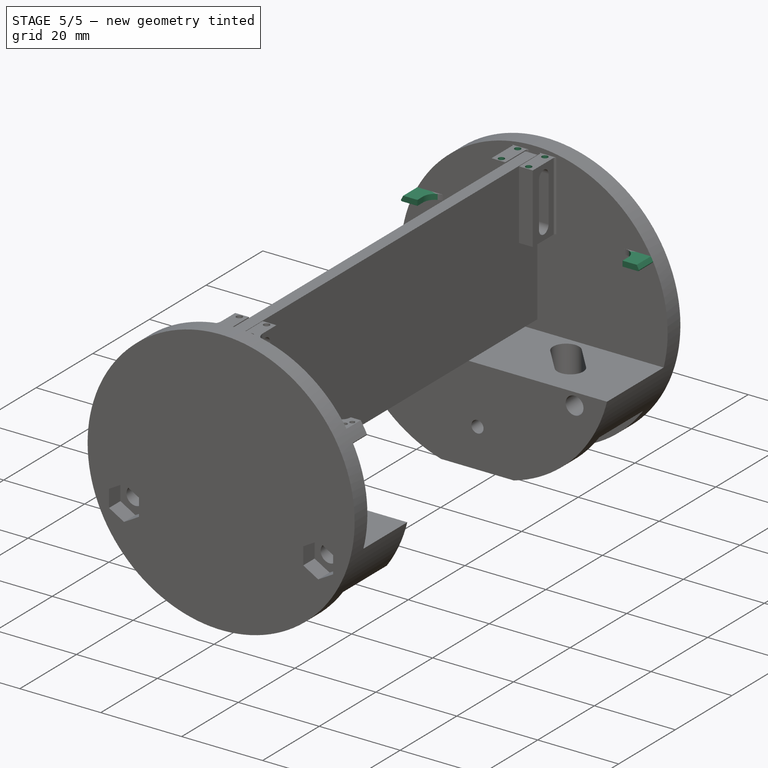
[diagram: stage 5 of 5 — iso view after this stage's code; geometry added in this stage tinted green]
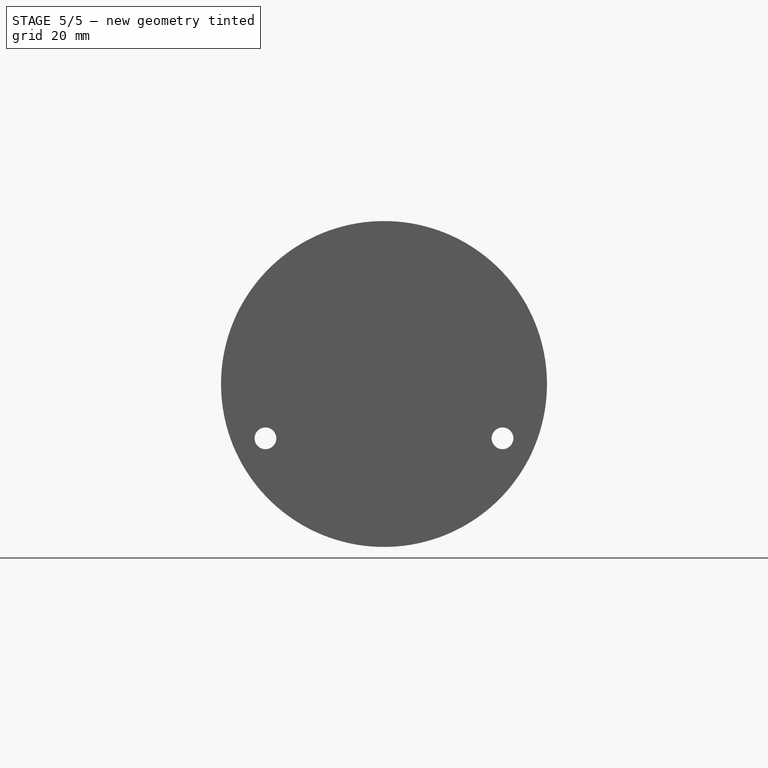
[diagram: stage 5 of 5 — front view after this stage's code; geometry added in this stage tinted green]
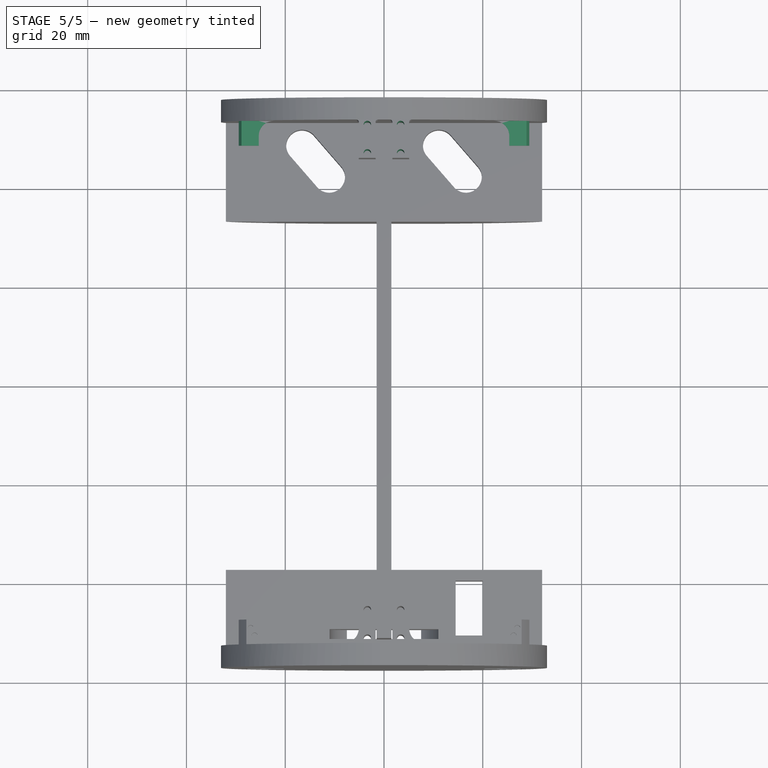
[diagram: stage 5 of 5 — top view after this stage's code; geometry added in this stage tinted green]
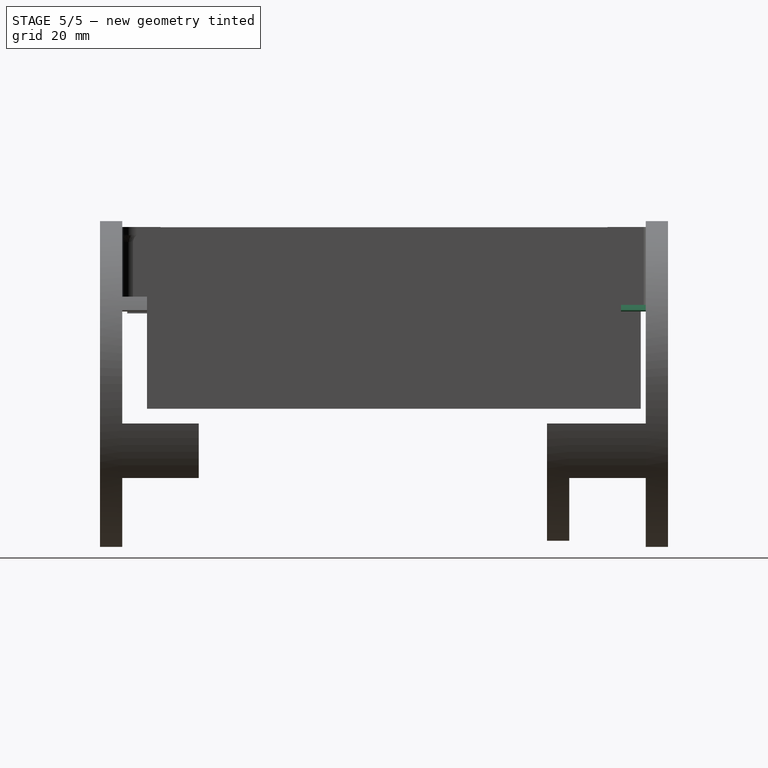
[diagram: stage 5 of 5 — right view after this stage's code; geometry added in this stage tinted green]
FEATURE [PartDesign::Mirrored] Mirrored004  label="Con_agujeros_superiores"
  BaseFeature = -> Mirrored003
  MirrorPlane = -> XZ_Plane002
  Originals = -> [Pocket008]
  Placement = pos=(0,33,7e-15) rot=(0,0,1;0rad)
FEATURE [PartDesign::MultiTransform] MultiTransform  label="Piezas_agujeros_laterales"
  BaseFeature = -> Mirrored004
  Placement = pos=(0,33,7e-15) rot=(0,0,1;0rad)
FEATURE [PartDesign::MultiTransform] MultiTransform001  label="Parte_lateral"
  BaseFeature = -> Mirrored004
  Originals = -> [Pocket009]
  Placement = pos=(0,33,7e-15) rot=(0,0,1;0rad)
FEATURE [PartDesign::Mirrored] Mirrored005
  MirrorPlane = -> XZ_Plane002
  Placement = pos=(0,33,7e-15) rot=(0,0,1;0rad)
FEATURE [PartDesign::Mirrored] Mirrored006
  MirrorPlane = -> Sketch020 [V_Axis]
  Placement = pos=(0,33,7e-15) rot=(0,0,1;0rad)
FEATURE [PartDesign::MultiTransform] MultiTransform002  label="Parte_lateral_con_agujeros"
  BaseFeature = -> MultiTransform001
  Originals = -> [Pocket009]
  Placement = pos=(0,33,7e-15) rot=(0,0,1;0rad)
  Transformations = -> [Mirrored005,Mirrored006]
FEATURE [PartDesign::Fillet] Fillet003
  Base = -> MultiTransform002 [Edge69,Edge66,Edge73,Edge70]
  BaseFeature = -> MultiTransform002
  Placement = pos=(0,33,7e-15) rot=(0,0,1;0rad)
  Radius = 0.5
  SupportTransform = false
FEATURE [PartDesign::Fillet] Fillet004
  Base = -> Fillet003 [Edge32,Edge92,Edge100,Edge40]
  BaseFeature = -> Fillet003
  Placement = pos=(0,33,7e-15) rot=(0,0,1;0rad)
  Radius = 0.5
  SupportTransform = false
FEATURE [PartDesign::Fillet] Fillet005
  Base = -> Fillet004 [Edge43,Edge39]
  BaseFeature = -> Fillet004
  Placement = pos=(0,33,7e-15) rot=(0,0,1;0rad)
  Radius = 3
  SupportTransform = false
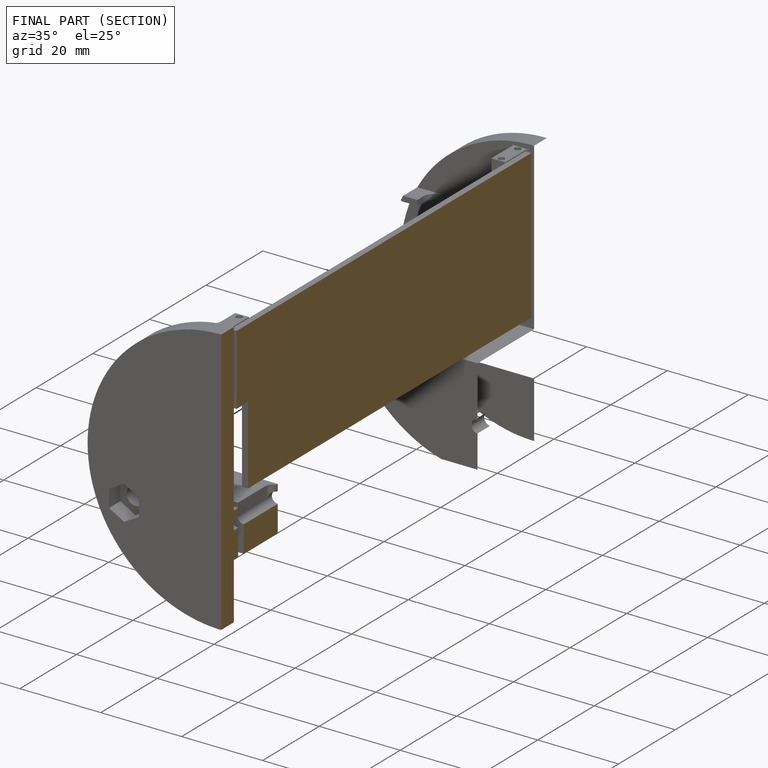
[diagram: finished part — half-section view (interior)]
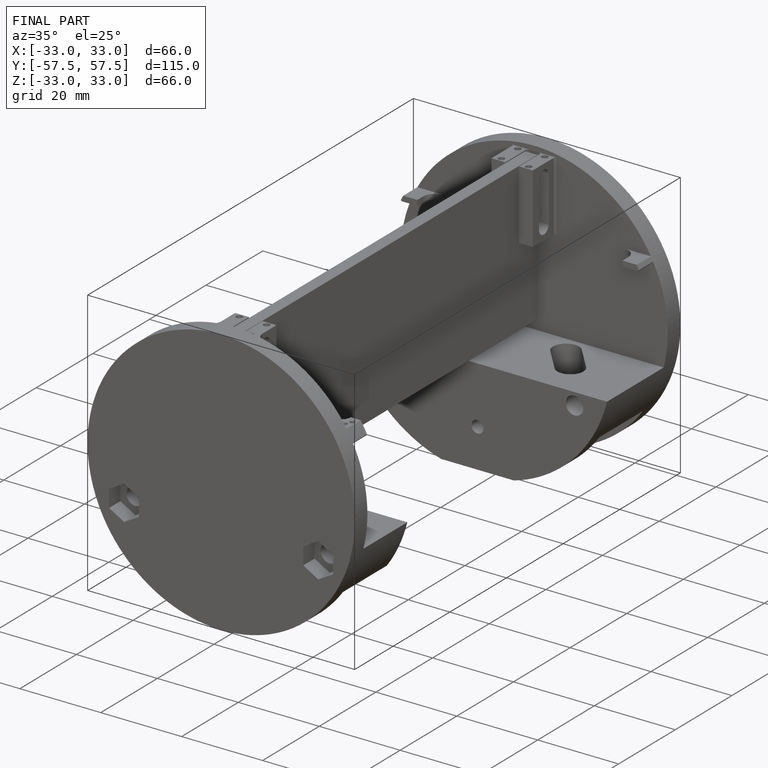
[diagram: finished part — iso view with bounding-box wireframe]
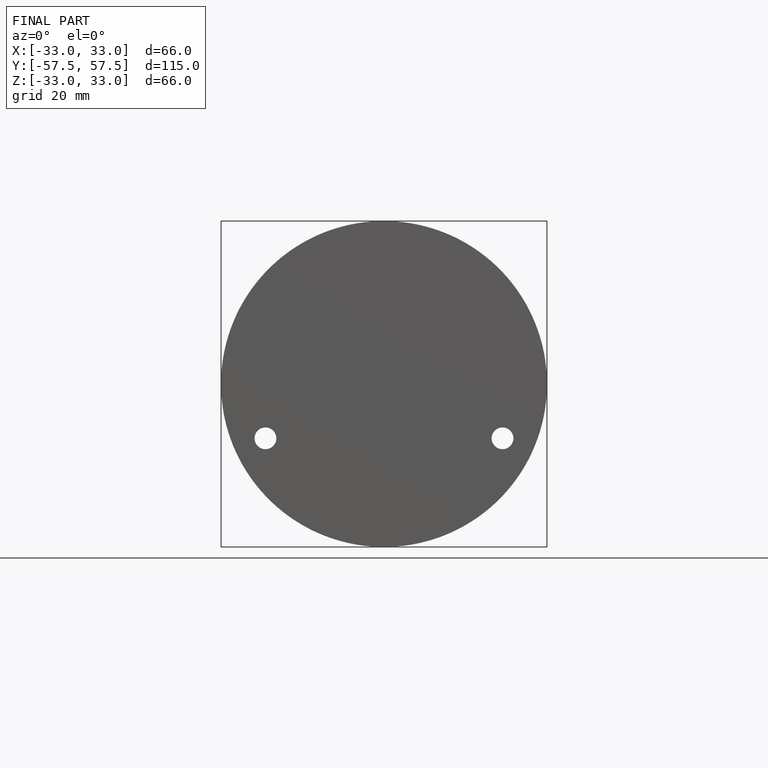
[diagram: finished part — front view with bounding-box wireframe]
